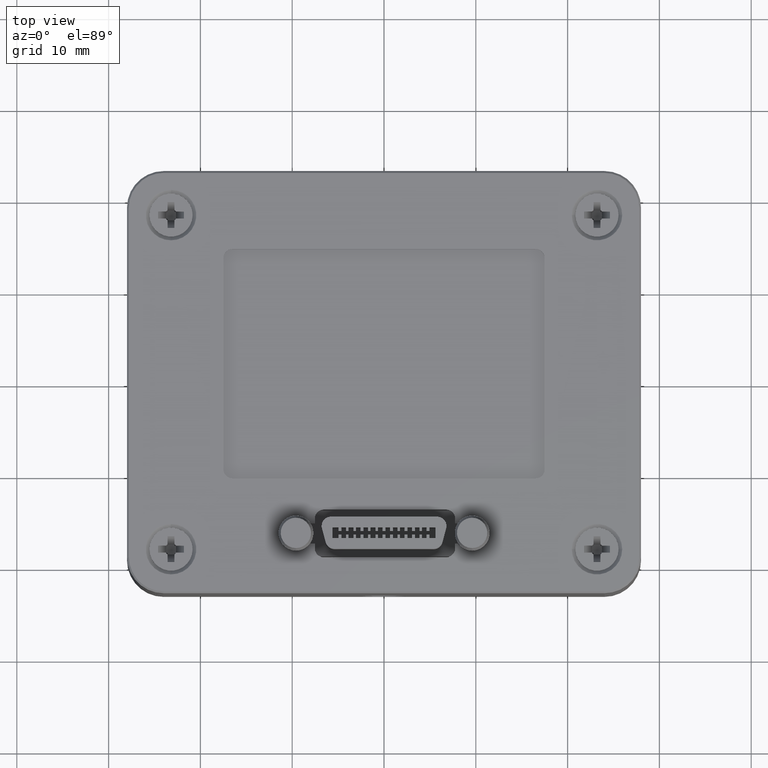
[diagram: clean part render]
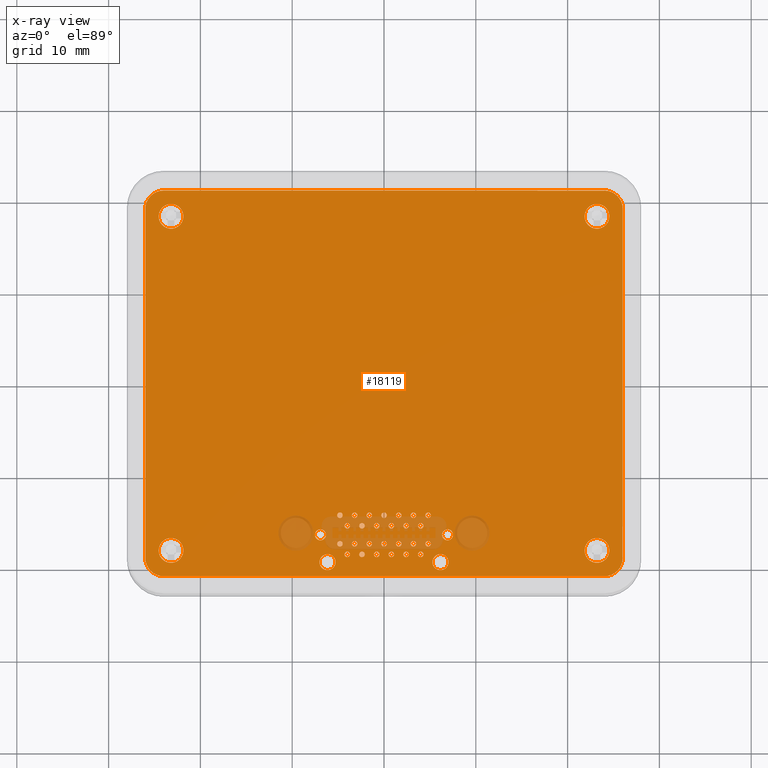
[diagram: x-ray — body ghosted, one internal face saturated and labeled with its STEP entity id]
A machine part, top view, then the same camera in x-ray: the body is ghosted and one INTERNAL B-rep face — a face not visible from any outside direction — is saturated and labeled: STEP entity #18119.
In plain terms, the highlighted planar face has unit normal (0, 0, -1).
Its self-contained STEP definition (entity closure, byte-faithful):
#28 = VERTEX_POINT ( 'NONE', #11020 ) ;
#115 = CARTESIAN_POINT ( 'NONE',  ( -23.99999840000000600, -21.00967774000002600, 19.98000000000000800 ) ) ;
#287 = CIRCLE ( 'NONE', #34578, 0.2999994000000005800 ) ;
#355 = CARTESIAN_POINT ( 'NONE',  ( 3.999998939999992200, -15.52000114000001200, 19.98000000000000800 ) ) ;
#406 = VERTEX_POINT ( 'NONE', #15620 ) ;
#450 = ORIENTED_EDGE ( 'NONE', *, *, #102797, .T. ) ;
#473 = ORIENTED_EDGE ( 'NONE', *, *, #3146, .T. ) ;
#479 = DIRECTION ( 'NONE',  ( -1.000000000000000000, 0.0000000000000000000, 0.0000000000000000000 ) ) ;
#610 = AXIS2_PLACEMENT_3D ( 'NONE', #82373, #33229, #90702 ) ;
#706 = VERTEX_POINT ( 'NONE', #85170 ) ;
#870 = AXIS2_PLACEMENT_3D ( 'NONE', #68925, #19727, #77203 ) ;
#1112 = VECTOR ( 'NONE', #3639, 1000.000000000000000 ) ;
#1152 = FACE_BOUND ( 'NONE', #28667, .T. ) ;
#1222 = CARTESIAN_POINT ( 'NONE',  ( -4.800001240000007400, -14.36999836000001100, 19.98000000000000800 ) ) ;
#1248 = DIRECTION ( 'NONE',  ( -1.000000000000000000, 0.0000000000000000000, 0.0000000000000000000 ) ) ;
#1350 = VERTEX_POINT ( 'NONE', #29875 ) ;
#1376 = EDGE_CURVE ( 'NONE', #105071, #77324, #57894, .T. ) ;
#1395 = ORIENTED_EDGE ( 'NONE', *, *, #3830, .T. ) ;
#1468 = ORIENTED_EDGE ( 'NONE', *, *, #86508, .T. ) ;
#1502 = VERTEX_POINT ( 'NONE', #44539 ) ;
#1516 = EDGE_LOOP ( 'NONE', ( #44901, #18331 ) ) ;
#1718 = CARTESIAN_POINT ( 'NONE',  ( 3.499999939999994600, -17.47999722000001200, 19.98000000000000800 ) ) ;
#1740 = VERTEX_POINT ( 'NONE', #88664 ) ;
#1797 = CIRCLE ( 'NONE', #104531, 0.2999994000000005800 ) ;
#1872 = CARTESIAN_POINT ( 'NONE',  ( 4.500000479999991800, -17.47999722000001200, 19.98000000000000800 ) ) ;
#1894 = AXIS2_PLACEMENT_3D ( 'NONE', #15273, #72739, #23514 ) ;
#2083 = DIRECTION ( 'NONE',  ( -1.000000000000000000, 0.0000000000000000000, 0.0000000000000000000 ) ) ;
#2177 = EDGE_CURVE ( 'NONE', #92376, #69365, #39417, .T. ) ;
#2188 = DIRECTION ( 'NONE',  ( -1.000000000000000000, 0.0000000000000000000, 0.0000000000000000000 ) ) ;
#2376 = CARTESIAN_POINT ( 'NONE',  ( 4.299998339999993000, -15.52000114000001200, 19.98000000000000800 ) ) ;
#2440 = VECTOR ( 'NONE', #79684, 1000.000000000000200 ) ;
#2461 = ORIENTED_EDGE ( 'NONE', *, *, #71109, .T. ) ;
#2490 = PLANE ( 'NONE',  #62296 ) ;
#2520 = CARTESIAN_POINT ( 'NONE',  ( -1.899999420000003000, -17.47999722000001200, 19.98000000000000800 ) ) ;
#2820 = VERTEX_POINT ( 'NONE', #18554 ) ;
#2881 = DIRECTION ( 'NONE',  ( -1.000000000000000000, 0.0000000000000000000, -0.0000000000000000000 ) ) ;
#3048 = EDGE_LOOP ( 'NONE', ( #50128, #71892 ) ) ;
#3116 = CARTESIAN_POINT ( 'NONE',  ( 25.11651754000002200, 20.67098566000001700, 19.98000000000000800 ) ) ;
#3146 = EDGE_CURVE ( 'NONE', #93477, #42542, #64791, .T. ) ;
#3186 = VERTEX_POINT ( 'NONE', #40715 ) ;
#3532 = DIRECTION ( 'NONE',  ( -0.0000000000000000000, -0.0000000000000000000, 1.000000000000000000 ) ) ;
#3572 = VERTEX_POINT ( 'NONE', #50623 ) ;
#3639 = DIRECTION ( 'NONE',  ( -0.8819206700784409900, -0.4713978486251221800, 0.0000000000000000000 ) ) ;
#3707 = EDGE_CURVE ( 'NONE', #55213, #70942, #47787, .T. ) ;
#3744 = FACE_BOUND ( 'NONE', #17500, .T. ) ;
#3830 = EDGE_CURVE ( 'NONE', #1350, #53229, #87510, .T. ) ;
#3850 = DIRECTION ( 'NONE',  ( -0.0000000000000000000, -0.0000000000000000000, 1.000000000000000000 ) ) ;
#3878 = CARTESIAN_POINT ( 'NONE',  ( -23.99999840000000300, 21.00967687999998600, 19.98000000000000800 ) ) ;
#3946 = LINE ( 'NONE', #77206, #88757 ) ;
#3966 = CARTESIAN_POINT ( 'NONE',  ( 2.699998999999994700, -18.63000000000001000, 19.98000000000000800 ) ) ;
#4085 = ORIENTED_EDGE ( 'NONE', *, *, #25369, .T. ) ;
#4088 = CARTESIAN_POINT ( 'NONE',  ( -1.600000020000002400, -14.36999836000001100, 19.98000000000000800 ) ) ;
#4344 = AXIS2_PLACEMENT_3D ( 'NONE', #69811, #20597, #78054 ) ;
#4347 = VERTEX_POINT ( 'NONE', #60956 ) ;
#4473 = EDGE_LOOP ( 'NONE', ( #88993, #82968 ) ) ;
#4736 = CARTESIAN_POINT ( 'NONE',  ( 2.100000199999993500, -18.63000000000001000, 19.98000000000000800 ) ) ;
#4768 = EDGE_CURVE ( 'NONE', #86097, #105760, #33131, .T. ) ;
#4934 = DIRECTION ( 'NONE',  ( -1.000000000000000000, 0.0000000000000000000, 0.0000000000000000000 ) ) ;
#4947 = DIRECTION ( 'NONE',  ( 0.8819206700783308600, 0.4713978486253280200, 0.0000000000000000000 ) ) ;
#4984 = CIRCLE ( 'NONE', #26803, 1.349999839999997700 ) ;
#5268 = CARTESIAN_POINT ( 'NONE',  ( 26.00967805999999900, 18.99999839999998800, 19.98000000000000800 ) ) ;
#5300 = AXIS2_PLACEMENT_3D ( 'NONE', #100617, #51424, #2188 ) ;
#5503 = EDGE_LOOP ( 'NONE', ( #99090, #28560 ) ) ;
#5508 = LINE ( 'NONE', #86692, #90300 ) ;
#5547 = CARTESIAN_POINT ( 'NONE',  ( 23.99999957999999400, 21.00967687999999400, 19.98000000000000800 ) ) ;
#5739 = AXIS2_PLACEMENT_3D ( 'NONE', #24428, #81841, #32710 ) ;
#5740 = VERTEX_POINT ( 'NONE', #78143 ) ;
#5754 = DIRECTION ( 'NONE',  ( -1.000000000000000000, 0.0000000000000000000, 0.0000000000000000000 ) ) ;
#5903 = CARTESIAN_POINT ( 'NONE',  ( 26.00000065999998700, -18.99999926000001000, 19.98000000000000800 ) ) ;
#5929 = CIRCLE ( 'NONE', #89865, 0.2999994000000005800 ) ;
#5975 = EDGE_CURVE ( 'NONE', #36511, #84243, #50821, .T. ) ;
#6147 = EDGE_CURVE ( 'NONE', #77324, #92630, #82772, .T. ) ;
#6295 = AXIS2_PLACEMENT_3D ( 'NONE', #62783, #13584, #71030 ) ;
#6338 = FACE_BOUND ( 'NONE', #34615, .T. ) ;
#6435 = DIRECTION ( 'NONE',  ( -0.09801754873775267400, 0.9951846864474163100, 0.0000000000000000000 ) ) ;
#6463 = EDGE_LOOP ( 'NONE', ( #74937, #88535 ) ) ;
#6471 = DIRECTION ( 'NONE',  ( -1.000000000000000000, 0.0000000000000000000, 0.0000000000000000000 ) ) ;
#6486 = EDGE_CURVE ( 'NONE', #25429, #74403, #14399, .T. ) ;
#6529 = CARTESIAN_POINT ( 'NONE',  ( 2.399999599999993900, -18.63000000000001000, 19.98000000000000800 ) ) ;
#6650 = LINE ( 'NONE', #37326, #72162 ) ;
#6678 = VERTEX_POINT ( 'NONE', #35029 ) ;
#6963 = CARTESIAN_POINT ( 'NONE',  ( 24.39206890000003000, 20.97106126000010600, 19.98000000000000800 ) ) ;
#7020 = DIRECTION ( 'NONE',  ( 0.4713978486251180800, 0.8819206700784433300, 0.0000000000000000000 ) ) ;
#7177 = EDGE_CURVE ( 'NONE', #62270, #66074, #87290, .T. ) ;
#7262 = VECTOR ( 'NONE', #13795, 1000.000000000000000 ) ;
#7273 = CARTESIAN_POINT ( 'NONE',  ( -23.20000000000001000, -18.20000086000001400, 19.98000000000000800 ) ) ;
#7297 = CARTESIAN_POINT ( 'NONE',  ( 5.099999279999992500, -17.47999722000001200, 19.98000000000000800 ) ) ;
#7323 = CARTESIAN_POINT ( 'NONE',  ( -4.299999700000007900, -18.63000000000001000, 19.98000000000000800 ) ) ;
#7627 = VERTEX_POINT ( 'NONE', #3966 ) ;
#7668 = CARTESIAN_POINT ( 'NONE',  ( 4.799999879999992600, -17.47999722000001200, 19.98000000000000800 ) ) ;
#7745 = DIRECTION ( 'NONE',  ( -1.000000000000000000, 0.0000000000000000000, 0.0000000000000000000 ) ) ;
#7879 = EDGE_CURVE ( 'NONE', #1502, #2820, #70314, .T. ) ;
#8043 = EDGE_LOOP ( 'NONE', ( #50307, #84025 ) ) ;
#8094 = VERTEX_POINT ( 'NONE', #101192 ) ;
#8105 = CIRCLE ( 'NONE', #6295, 0.5999988000000011600 ) ;
#8124 = CARTESIAN_POINT ( 'NONE',  ( -2.400000960000002500, -15.52000114000001200, 19.98000000000000800 ) ) ;
#8184 = EDGE_CURVE ( 'NONE', #42542, #1740, #87009, .T. ) ;
#8200 = VERTEX_POINT ( 'NONE', #21388 ) ;
#8213 = AXIS2_PLACEMENT_3D ( 'NONE', #39716, #97207, #48036 ) ;
#8343 = EDGE_CURVE ( 'NONE', #103382, #80934, #83070, .T. ) ;
#8422 = CARTESIAN_POINT ( 'NONE',  ( 3.999998939999992200, -18.63000000000001000, 19.98000000000000800 ) ) ;
#8669 = CARTESIAN_POINT ( 'NONE',  ( -7.025000600000001100, -19.47499958000001300, 19.98000000000000800 ) ) ;
#8670 = DIRECTION ( 'NONE',  ( -1.000000000000000000, 0.0000000000000000000, 0.0000000000000000000 ) ) ;
#8923 = FACE_BOUND ( 'NONE', #78958, .T. ) ;
#8976 = ORIENTED_EDGE ( 'NONE', *, *, #31561, .T. ) ;
#9080 = ORIENTED_EDGE ( 'NONE', *, *, #75658, .T. ) ;
#9101 = CARTESIAN_POINT ( 'NONE',  ( 6.149999719999993200, -19.47499958000001300, 19.98000000000000800 ) ) ;
#9109 = DIRECTION ( 'NONE',  ( -0.0000000000000000000, -0.0000000000000000000, 1.000000000000000000 ) ) ;
#9160 = DIRECTION ( 'NONE',  ( -0.0000000000000000000, -0.0000000000000000000, 1.000000000000000000 ) ) ;
#9217 = EDGE_CURVE ( 'NONE', #82378, #84679, #26176, .T. ) ;
#9224 = CIRCLE ( 'NONE', #9564, 0.2999994000000005800 ) ;
#9257 = CARTESIAN_POINT ( 'NONE',  ( 25.97106243999998300, 19.39206771999998900, 19.98000000000000800 ) ) ;
#9304 = LINE ( 'NONE', #31072, #94112 ) ;
#9533 = DIRECTION ( 'NONE',  ( -1.000000000000000000, 0.0000000000000000000, 0.0000000000000000000 ) ) ;
#9535 = EDGE_CURVE ( 'NONE', #53229, #91298, #17114, .T. ) ;
#9564 = AXIS2_PLACEMENT_3D ( 'NONE', #74533, #25348, #82732 ) ;
#9834 = EDGE_CURVE ( 'NONE', #79511, #88601, #19835, .T. ) ;
#10049 = CARTESIAN_POINT ( 'NONE',  ( -2.700000360000002900, -15.52000114000001200, 19.98000000000000800 ) ) ;
#10180 = EDGE_LOOP ( 'NONE', ( #10872, #80701 ) ) ;
#10321 = DIRECTION ( 'NONE',  ( -0.0000000000000000000, -0.0000000000000000000, 1.000000000000000000 ) ) ;
#10537 = VERTEX_POINT ( 'NONE', #36761 ) ;
#10586 = CARTESIAN_POINT ( 'NONE',  ( -6.925000800000007400, -16.49999918000001400, 19.98000000000000800 ) ) ;
#10782 = DIRECTION ( 'NONE',  ( -0.0000000000000000000, -0.0000000000000000000, 1.000000000000000000 ) ) ;
#10872 = ORIENTED_EDGE ( 'NONE', *, *, #92033, .T. ) ;
#10983 = CIRCLE ( 'NONE', #47097, 0.2999994000000005800 ) ;
#11020 = CARTESIAN_POINT ( 'NONE',  ( 26.00967805999999900, -18.99999926000001000, 19.98000000000000800 ) ) ;
#11176 = VERTEX_POINT ( 'NONE', #104627 ) ;
#11231 = CARTESIAN_POINT ( 'NONE',  ( -3.199999360000007600, -14.36999836000001100, 19.98000000000000800 ) ) ;
#11401 = EDGE_CURVE ( 'NONE', #18521, #85608, #93892, .T. ) ;
#11475 = FACE_BOUND ( 'NONE', #50086, .T. ) ;
#11618 = VERTEX_POINT ( 'NONE', #103249 ) ;
#11621 = ORIENTED_EDGE ( 'NONE', *, *, #86494, .T. ) ;
#11629 = VECTOR ( 'NONE', #63360, 1000.000000000000100 ) ;
#11635 = VERTEX_POINT ( 'NONE', #21321 ) ;
#11769 = VERTEX_POINT ( 'NONE', #7323 ) ;
#11805 = VECTOR ( 'NONE', #82223, 1000.000000000000000 ) ;
#12083 = CIRCLE ( 'NONE', #88570, 1.349999839999997700 ) ;
#12330 = DIRECTION ( 'NONE',  ( -1.000000000000000000, 0.0000000000000000000, 0.0000000000000000000 ) ) ;
#12379 = LINE ( 'NONE', #9257, #53527 ) ;
#12905 = VECTOR ( 'NONE', #38892, 1000.000000000000000 ) ;
#13111 = CARTESIAN_POINT ( 'NONE',  ( -6.800000076911949500E-007, -17.47999722000001200, 19.98000000000000800 ) ) ;
#13173 = CARTESIAN_POINT ( 'NONE',  ( 25.97106243999993000, -19.39206857999998900, 19.98000000000000800 ) ) ;
#13373 = AXIS2_PLACEMENT_3D ( 'NONE', #93151, #43922, #101397 ) ;
#13418 = CARTESIAN_POINT ( 'NONE',  ( 24.76907093999998500, 20.85670029999998200, 19.98000000000000800 ) ) ;
#13442 = DIRECTION ( 'NONE',  ( -0.0000000000000000000, -0.0000000000000000000, 1.000000000000000000 ) ) ;
#13499 = CARTESIAN_POINT ( 'NONE',  ( -3.499998760000008000, -17.47999722000001200, 19.98000000000000800 ) ) ;
#13584 = DIRECTION ( 'NONE',  ( -0.0000000000000000000, -0.0000000000000000000, 1.000000000000000000 ) ) ;
#13780 = EDGE_LOOP ( 'NONE', ( #58355, #76494 ) ) ;
#13795 = DIRECTION ( 'NONE',  ( 0.9951846864474455100, -0.09801754873745609200, 0.0000000000000000000 ) ) ;
#13812 = DIRECTION ( 'NONE',  ( -0.8819206700782624700, 0.4713978486254563600, 0.0000000000000000000 ) ) ;
#13992 = EDGE_CURVE ( 'NONE', #23168, #84642, #24847, .T. ) ;
#14058 = FACE_BOUND ( 'NONE', #58245, .T. ) ;
#14126 = VERTEX_POINT ( 'NONE', #75965 ) ;
#14144 = CARTESIAN_POINT ( 'NONE',  ( 25.67098683999990900, -20.11651721999994900, 19.98000000000000800 ) ) ;
#14245 = AXIS2_PLACEMENT_3D ( 'NONE', #42782, #100247, #51090 ) ;
#14399 = LINE ( 'NONE', #33092, #11805 ) ;
#14407 = EDGE_CURVE ( 'NONE', #68388, #95670, #9304, .T. ) ;
#14556 = AXIS2_PLACEMENT_3D ( 'NONE', #99683, #50525, #1248 ) ;
#14721 = ORIENTED_EDGE ( 'NONE', *, *, #19621, .T. ) ;
#14754 = ORIENTED_EDGE ( 'NONE', *, *, #67758, .T. ) ;
#14781 = CARTESIAN_POINT ( 'NONE',  ( -1.600000020000002400, -17.47999722000001200, 19.98000000000000800 ) ) ;
#14803 = DIRECTION ( 'NONE',  ( -1.000000000000000000, 0.0000000000000000000, 0.0000000000000000000 ) ) ;
#14867 = AXIS2_PLACEMENT_3D ( 'NONE', #86281, #37072, #94576 ) ;
#14878 = EDGE_CURVE ( 'NONE', #73488, #78457, #87456, .T. ) ;
#14966 = EDGE_CURVE ( 'NONE', #3186, #26697, #66857, .T. ) ;
#15205 = DIRECTION ( 'NONE',  ( 0.9569412936382127900, -0.2902815194428055600, 0.0000000000000000000 ) ) ;
#15273 = CARTESIAN_POINT ( 'NONE',  ( -6.925000800000007400, -16.49999918000001400, 19.98000000000000800 ) ) ;
#15402 = ORIENTED_EDGE ( 'NONE', *, *, #7177, .T. ) ;
#15412 = EDGE_CURVE ( 'NONE', #87747, #85692, #25561, .T. ) ;
#15417 = CARTESIAN_POINT ( 'NONE',  ( -1.300000620000001800, -14.36999836000001100, 19.98000000000000800 ) ) ;
#15535 = DIRECTION ( 'NONE',  ( -1.000000000000000000, 0.0000000000000000000, 0.0000000000000000000 ) ) ;
#15620 = CARTESIAN_POINT ( 'NONE',  ( 6.325000640000001600, -16.49999918000001400, 19.98000000000000800 ) ) ;
#15624 = VERTEX_POINT ( 'NONE', #35225 ) ;
#15667 = VERTEX_POINT ( 'NONE', #101325 ) ;
#15932 = DIRECTION ( 'NONE',  ( -1.000000000000000000, 0.0000000000000000000, 0.0000000000000000000 ) ) ;
#15958 = CARTESIAN_POINT ( 'NONE',  ( 3.200000539999994200, -14.36999836000001100, 19.98000000000000800 ) ) ;
#16075 = VERTEX_POINT ( 'NONE', #91888 ) ;
#16308 = ORIENTED_EDGE ( 'NONE', *, *, #14878, .T. ) ;
#16370 = DIRECTION ( 'NONE',  ( -1.000000000000000000, 0.0000000000000000000, 0.0000000000000000000 ) ) ;
#16410 = EDGE_LOOP ( 'NONE', ( #88484, #77710 ) ) ;
#16430 = EDGE_CURVE ( 'NONE', #95063, #103210, #63515, .T. ) ;
#16528 = ORIENTED_EDGE ( 'NONE', *, *, #96616, .T. ) ;
#16613 = DIRECTION ( 'NONE',  ( -0.0000000000000000000, -0.0000000000000000000, 1.000000000000000000 ) ) ;
#16631 = FACE_BOUND ( 'NONE', #95626, .T. ) ;
#16646 = DIRECTION ( 'NONE',  ( -1.000000000000000000, 0.0000000000000000000, 0.0000000000000000000 ) ) ;
#16734 = VERTEX_POINT ( 'NONE', #5903 ) ;
#16821 = EDGE_CURVE ( 'NONE', #70942, #55213, #287, .T. ) ;
#17097 = ORIENTED_EDGE ( 'NONE', *, *, #13992, .T. ) ;
#17114 = LINE ( 'NONE', #88280, #55675 ) ;
#17361 = DIRECTION ( 'NONE',  ( -1.000000000000000000, 0.0000000000000000000, 0.0000000000000000000 ) ) ;
#17449 = AXIS2_PLACEMENT_3D ( 'NONE', #95829, #46616, #104060 ) ;
#17500 = EDGE_LOOP ( 'NONE', ( #18430, #52760 ) ) ;
#17565 = DIRECTION ( 'NONE',  ( -0.4713978486254763500, -0.8819206700782517000, 0.0000000000000000000 ) ) ;
#17641 = EDGE_CURVE ( 'NONE', #66074, #62270, #46395, .T. ) ;
#17666 = AXIS2_PLACEMENT_3D ( 'NONE', #39118, #96609, #47381 ) ;
#17880 = ORIENTED_EDGE ( 'NONE', *, *, #77315, .T. ) ;
#18077 = ORIENTED_EDGE ( 'NONE', *, *, #51390, .T. ) ;
#18096 = EDGE_CURVE ( 'NONE', #78457, #73488, #104001, .T. ) ;
#18119 = ADVANCED_FACE ( 'NONE', ( #38450, #19163, #60318, #16631, #101451, #79535, #57758, #35879, #14058, #98859, #77006, #55179, #33315, #11475, #96303, #74435, #52607, #30769, #8923, #93730, #71846, #50030, #28188, #6338, #91132, #69258, #47455, #25598, #3744, #88544, #66682, #44848, #22999, #1152, #85947 ), #2490, .T. ) ;
#18232 = AXIS2_PLACEMENT_3D ( 'NONE', #59952, #10782, #68199 ) ;
#18292 = ORIENTED_EDGE ( 'NONE', *, *, #33829, .T. ) ;
#18331 = ORIENTED_EDGE ( 'NONE', *, *, #94394, .T. ) ;
#18430 = ORIENTED_EDGE ( 'NONE', *, *, #11401, .T. ) ;
#18465 = VECTOR ( 'NONE', #82326, 1000.000000000000100 ) ;
#18521 = VERTEX_POINT ( 'NONE', #72833 ) ;
#18554 = CARTESIAN_POINT ( 'NONE',  ( 24.55000101999998900, -18.20000086000001400, 19.98000000000000800 ) ) ;
#18667 = CARTESIAN_POINT ( 'NONE',  ( -24.76906976000000100, -20.85670116000000400, 19.98000000000000800 ) ) ;
#18818 = DIRECTION ( 'NONE',  ( -1.000000000000000000, 0.0000000000000000000, 0.0000000000000000000 ) ) ;
#18832 = CARTESIAN_POINT ( 'NONE',  ( 6.924999440000003200, -16.49999918000001400, 19.98000000000000800 ) ) ;
#19163 = FACE_BOUND ( 'NONE', #98954, .T. ) ;
#19242 = CIRCLE ( 'NONE', #75195, 0.2999994000000005800 ) ;
#19456 = DIRECTION ( 'NONE',  ( -1.000000000000000000, 0.0000000000000000000, 0.0000000000000000000 ) ) ;
#19472 = CIRCLE ( 'NONE', #83093, 0.2999994000000005800 ) ;
#19517 = CIRCLE ( 'NONE', #14245, 0.8749995200000027000 ) ;
#19553 = ORIENTED_EDGE ( 'NONE', *, *, #39016, .T. ) ;
#19621 = EDGE_CURVE ( 'NONE', #21370, #6678, #81356, .T. ) ;
#19727 = DIRECTION ( 'NONE',  ( -0.0000000000000000000, -0.0000000000000000000, 1.000000000000000000 ) ) ;
#19835 = LINE ( 'NONE', #51695, #41710 ) ;
#19894 = ORIENTED_EDGE ( 'NONE', *, *, #59552, .T. ) ;
#20130 = CARTESIAN_POINT ( 'NONE',  ( 25.11651753999999300, -20.67098652000001700, 19.98000000000000800 ) ) ;
#20274 = EDGE_CURVE ( 'NONE', #16075, #103252, #75912, .T. ) ;
#20281 = VECTOR ( 'NONE', #46702, 1000.000000000000100 ) ;
#20505 = CIRCLE ( 'NONE', #100056, 0.2999994000000005800 ) ;
#20597 = DIRECTION ( 'NONE',  ( -0.0000000000000000000, -0.0000000000000000000, 1.000000000000000000 ) ) ;
#20598 = LINE ( 'NONE', #52656, #39888 ) ;
#20644 = ORIENTED_EDGE ( 'NONE', *, *, #9217, .T. ) ;
#20745 = CARTESIAN_POINT ( 'NONE',  ( -1.600000020000002400, -17.47999722000001200, 19.98000000000000800 ) ) ;
#21039 = CARTESIAN_POINT ( 'NONE',  ( -25.67098566000004900, 20.11651636000002300, 19.98000000000000800 ) ) ;
#21180 = VERTEX_POINT ( 'NONE', #90053 ) ;
#21219 = CIRCLE ( 'NONE', #80076, 0.8749995199999992500 ) ;
#21321 = CARTESIAN_POINT ( 'NONE',  ( -2.899999960000006800, -14.36999836000001100, 19.98000000000000800 ) ) ;
#21339 = DIRECTION ( 'NONE',  ( -1.000000000000000000, 0.0000000000000000000, 0.0000000000000000000 ) ) ;
#21370 = VERTEX_POINT ( 'NONE', #85294 ) ;
#21388 = CARTESIAN_POINT ( 'NONE',  ( -1.100001020000008300, -18.63000000000001000, 19.98000000000000800 ) ) ;
#21750 = AXIS2_PLACEMENT_3D ( 'NONE', #104117, #54930, #5754 ) ;
#21813 = CIRCLE ( 'NONE', #17666, 0.2999994000000005800 ) ;
#21828 = EDGE_LOOP ( 'NONE', ( #20644, #79814 ) ) ;
#21912 = CIRCLE ( 'NONE', #75857, 1.349999840000001100 ) ;
#21978 = AXIS2_PLACEMENT_3D ( 'NONE', #59512, #10321, #67752 ) ;
#22171 = AXIS2_PLACEMENT_3D ( 'NONE', #10586, #68002, #18818 ) ;
#22249 = ORIENTED_EDGE ( 'NONE', *, *, #55419, .T. ) ;
#22365 = EDGE_LOOP ( 'NONE', ( #82910, #14754 ) ) ;
#22389 = CIRCLE ( 'NONE', #81972, 0.2999994000000005800 ) ;
#22475 = DIRECTION ( 'NONE',  ( -1.000000000000000000, 0.0000000000000000000, 0.0000000000000000000 ) ) ;
#22498 = CARTESIAN_POINT ( 'NONE',  ( -24.54999984000000900, 18.19999999999999600, 19.98000000000000800 ) ) ;
#22676 = DIRECTION ( 'NONE',  ( -0.9569412936382659700, -0.2902815194426299200, 0.0000000000000000000 ) ) ;
#22720 = ORIENTED_EDGE ( 'NONE', *, *, #99202, .T. ) ;
#22979 = DIRECTION ( 'NONE',  ( -1.000000000000000000, 0.0000000000000000000, 0.0000000000000000000 ) ) ;
#22995 = AXIS2_PLACEMENT_3D ( 'NONE', #76086, #71679, #22475 ) ;
#22999 = FACE_BOUND ( 'NONE', #13780, .T. ) ;
#23045 = LINE ( 'NONE', #59527, #64178 ) ;
#23168 = VERTEX_POINT ( 'NONE', #90269 ) ;
#23511 = VERTEX_POINT ( 'NONE', #4736 ) ;
#23514 = DIRECTION ( 'NONE',  ( -1.000000000000000000, 0.0000000000000000000, 0.0000000000000000000 ) ) ;
#23686 = EDGE_CURVE ( 'NONE', #6678, #93477, #89315, .T. ) ;
#23924 = VERTEX_POINT ( 'NONE', #93349 ) ;
#24189 = DIRECTION ( 'NONE',  ( -1.000000000000000000, 0.0000000000000000000, 0.0000000000000000000 ) ) ;
#24281 = ORIENTED_EDGE ( 'NONE', *, *, #8184, .T. ) ;
#24373 = CARTESIAN_POINT ( 'NONE',  ( 23.20000117999999000, 18.19999999999999600, 19.98000000000000800 ) ) ;
#24428 = CARTESIAN_POINT ( 'NONE',  ( 3.200000539999994200, -17.47999722000001200, 19.98000000000000800 ) ) ;
#24802 = EDGE_CURVE ( 'NONE', #92630, #25429, #59436, .T. ) ;
#24847 = CIRCLE ( 'NONE', #1894, 0.5999988000000011600 ) ;
#25304 = CARTESIAN_POINT ( 'NONE',  ( -25.42105474000004500, -20.42105560000004200, 19.98000000000000800 ) ) ;
#25322 = EDGE_CURVE ( 'NONE', #85608, #18521, #32258, .T. ) ;
#25348 = DIRECTION ( 'NONE',  ( -0.0000000000000000000, -0.0000000000000000000, 1.000000000000000000 ) ) ;
#25369 = EDGE_CURVE ( 'NONE', #47825, #77468, #21912, .T. ) ;
#25429 = VERTEX_POINT ( 'NONE', #54730 ) ;
#25464 = EDGE_CURVE ( 'NONE', #65289, #72569, #96469, .T. ) ;
#25550 = ORIENTED_EDGE ( 'NONE', *, *, #2177, .T. ) ;
#25561 = LINE ( 'NONE', #72665, #69218 ) ;
#25598 = FACE_BOUND ( 'NONE', #61965, .T. ) ;
#25629 = DIRECTION ( 'NONE',  ( -0.09801754873792392600, -0.9951846864473993200, 0.0000000000000000000 ) ) ;
#25728 = CARTESIAN_POINT ( 'NONE',  ( -3.700000900000007100, -15.52000114000001200, 19.98000000000000800 ) ) ;
#26050 = EDGE_CURVE ( 'NONE', #15667, #11618, #64498, .T. ) ;
#26139 = ORIENTED_EDGE ( 'NONE', *, *, #96923, .T. ) ;
#26176 = CIRCLE ( 'NONE', #870, 0.2999994000000005800 ) ;
#26246 = VECTOR ( 'NONE', #42854, 999.9999999999998900 ) ;
#26361 = VECTOR ( 'NONE', #40234, 1000.000000000000000 ) ;
#26485 = CARTESIAN_POINT ( 'NONE',  ( 23.99999957999998700, -21.00967774000001500, 19.98000000000000800 ) ) ;
#26601 = AXIS2_PLACEMENT_3D ( 'NONE', #13111, #70534, #21339 ) ;
#26697 = VERTEX_POINT ( 'NONE', #79998 ) ;
#26803 = AXIS2_PLACEMENT_3D ( 'NONE', #52747, #3532, #60990 ) ;
#26888 = VERTEX_POINT ( 'NONE', #26485 ) ;
#27119 = AXIS2_PLACEMENT_3D ( 'NONE', #104856, #55702, #6471 ) ;
#27128 = DIRECTION ( 'NONE',  ( -1.000000000000000000, 0.0000000000000000000, 0.0000000000000000000 ) ) ;
#27397 = EDGE_CURVE ( 'NONE', #68173, #83510, #70245, .T. ) ;
#27541 = DIRECTION ( 'NONE',  ( -0.0000000000000000000, -0.0000000000000000000, 1.000000000000000000 ) ) ;
#27690 = DIRECTION ( 'NONE',  ( 0.8819206700784406600, -0.4713978486251228500, 0.0000000000000000000 ) ) ;
#27695 = VERTEX_POINT ( 'NONE', #56475 ) ;
#27887 = CIRCLE ( 'NONE', #14867, 0.2999994000000005800 ) ;
#27896 = DIRECTION ( 'NONE',  ( -0.0000000000000000000, -0.0000000000000000000, 1.000000000000000000 ) ) ;
#28030 = ORIENTED_EDGE ( 'NONE', *, *, #15412, .T. ) ;
#28188 = FACE_BOUND ( 'NONE', #53953, .T. ) ;
#28507 = CARTESIAN_POINT ( 'NONE',  ( -2.400000960000002500, -18.63000000000001000, 19.98000000000000800 ) ) ;
#28560 = ORIENTED_EDGE ( 'NONE', *, *, #20274, .T. ) ;
#28667 = EDGE_LOOP ( 'NONE', ( #38523, #68943 ) ) ;
#28668 = EDGE_CURVE ( 'NONE', #88601, #87747, #40312, .T. ) ;
#28714 = ORIENTED_EDGE ( 'NONE', *, *, #98921, .T. ) ;
#28897 = CARTESIAN_POINT ( 'NONE',  ( -2.100001560000001700, -15.52000114000001200, 19.98000000000000800 ) ) ;
#29064 = DIRECTION ( 'NONE',  ( -1.000000000000000000, 0.0000000000000000000, 0.0000000000000000000 ) ) ;
#29665 = ORIENTED_EDGE ( 'NONE', *, *, #24802, .T. ) ;
#29826 = CARTESIAN_POINT ( 'NONE',  ( 25.67098684000000100, 20.11651635999999500, 19.98000000000000800 ) ) ;
#29875 = CARTESIAN_POINT ( 'NONE',  ( -25.85670030000007500, -19.76907062000002600, 19.98000000000000800 ) ) ;
#30455 = CARTESIAN_POINT ( 'NONE',  ( -1.899999420000003000, -14.36999836000001100, 19.98000000000000800 ) ) ;
#30509 = VERTEX_POINT ( 'NONE', #60795 ) ;
#30537 = CARTESIAN_POINT ( 'NONE',  ( -25.11651635999994500, -20.67098651999993600, 19.98000000000000800 ) ) ;
#30622 = EDGE_CURVE ( 'NONE', #7627, #23511, #65183, .T. ) ;
#30769 = FACE_BOUND ( 'NONE', #78442, .T. ) ;
#30872 = VECTOR ( 'NONE', #103447, 1000.000000000000200 ) ;
#30908 = CARTESIAN_POINT ( 'NONE',  ( -4.800001240000007400, -17.47999722000001200, 19.98000000000000800 ) ) ;
#31023 = ORIENTED_EDGE ( 'NONE', *, *, #42395, .T. ) ;
#31072 = CARTESIAN_POINT ( 'NONE',  ( 25.11651754000002900, 20.67098566000002800, 19.98000000000000800 ) ) ;
#31301 = ORIENTED_EDGE ( 'NONE', *, *, #14407, .T. ) ;
#31404 = VERTEX_POINT ( 'NONE', #32123 ) ;
#31423 = CARTESIAN_POINT ( 'NONE',  ( 24.76907093999996300, -20.85670115999991500, 19.98000000000000800 ) ) ;
#31561 = EDGE_CURVE ( 'NONE', #53982, #65970, #91840, .T. ) ;
#31703 = DIRECTION ( 'NONE',  ( -0.0000000000000000000, -0.0000000000000000000, 1.000000000000000000 ) ) ;
#31933 = CARTESIAN_POINT ( 'NONE',  ( 23.20000117999999000, -18.20000086000001400, 19.98000000000000800 ) ) ;
#32123 = CARTESIAN_POINT ( 'NONE',  ( -3.499998760000008000, -14.36999836000001100, 19.98000000000000800 ) ) ;
#32258 = CIRCLE ( 'NONE', #4344, 0.2999994000000005800 ) ;
#32664 = DIRECTION ( 'NONE',  ( -1.000000000000000000, 0.0000000000000000000, 0.0000000000000000000 ) ) ;
#32710 = DIRECTION ( 'NONE',  ( -1.000000000000000000, 0.0000000000000000000, 0.0000000000000000000 ) ) ;
#32886 = CARTESIAN_POINT ( 'NONE',  ( -3.199999360000007600, -14.36999836000001100, 19.98000000000000800 ) ) ;
#33011 = EDGE_CURVE ( 'NONE', #11635, #31404, #1797, .T. ) ;
#33092 = CARTESIAN_POINT ( 'NONE',  ( 23.99999957999999400, -18.99999926000001000, 19.98000000000000800 ) ) ;
#33131 = LINE ( 'NONE', #80132, #54988 ) ;
#33185 = CIRCLE ( 'NONE', #67957, 0.2999994000000005800 ) ;
#33229 = DIRECTION ( 'NONE',  ( -0.0000000000000000000, -0.0000000000000000000, 1.000000000000000000 ) ) ;
#33315 = FACE_BOUND ( 'NONE', #4473, .T. ) ;
#33454 = CARTESIAN_POINT ( 'NONE',  ( -4.000000300000007900, -18.63000000000001000, 19.98000000000000800 ) ) ;
#33693 = CARTESIAN_POINT ( 'NONE',  ( 25.97106243999998300, 19.39206771999998900, 19.98000000000000800 ) ) ;
#33699 = ORIENTED_EDGE ( 'NONE', *, *, #70585, .T. ) ;
#33798 = CARTESIAN_POINT ( 'NONE',  ( 1.300001799999992000, -17.47999722000001200, 19.98000000000000800 ) ) ;
#33829 = EDGE_CURVE ( 'NONE', #56470, #49558, #70835, .T. ) ;
#33836 = CIRCLE ( 'NONE', #76445, 1.349999839999997700 ) ;
#33874 = ORIENTED_EDGE ( 'NONE', *, *, #70825, .T. ) ;
#34002 = DIRECTION ( 'NONE',  ( -1.000000000000000000, 0.0000000000000000000, -0.0000000000000000000 ) ) ;
#34238 = CARTESIAN_POINT ( 'NONE',  ( -6.150001080000001800, -19.47499958000001300, 19.98000000000000800 ) ) ;
#34578 = AXIS2_PLACEMENT_3D ( 'NONE', #7668, #65090, #15932 ) ;
#34615 = EDGE_LOOP ( 'NONE', ( #17880, #55804 ) ) ;
#34644 = AXIS2_PLACEMENT_3D ( 'NONE', #46317, #103776, #54603 ) ;
#34671 = DIRECTION ( 'NONE',  ( -0.0000000000000000000, -0.0000000000000000000, 1.000000000000000000 ) ) ;
#34716 = CARTESIAN_POINT ( 'NONE',  ( -4.500001840000007500, -14.36999836000001100, 19.98000000000000800 ) ) ;
#34820 = CARTESIAN_POINT ( 'NONE',  ( -21.85000016000000800, 18.19999999999999600, 19.98000000000000800 ) ) ;
#34912 = EDGE_CURVE ( 'NONE', #72569, #84357, #73152, .T. ) ;
#34984 = EDGE_CURVE ( 'NONE', #54101, #8094, #89841, .T. ) ;
#34985 = CARTESIAN_POINT ( 'NONE',  ( -24.39206772000000700, 20.97106125999997800, 19.98000000000000800 ) ) ;
#35029 = CARTESIAN_POINT ( 'NONE',  ( -25.97106125999995600, 19.39206771999996800, 19.98000000000000800 ) ) ;
#35225 = CARTESIAN_POINT ( 'NONE',  ( 3.699999539999991400, -15.52000114000001200, 19.98000000000000800 ) ) ;
#35441 = EDGE_CURVE ( 'NONE', #96879, #75484, #54171, .T. ) ;
#35879 = FACE_BOUND ( 'NONE', #41619, .T. ) ;
#36022 = VERTEX_POINT ( 'NONE', #13418 ) ;
#36155 = EDGE_CURVE ( 'NONE', #26697, #3186, #38362, .T. ) ;
#36511 = VERTEX_POINT ( 'NONE', #28897 ) ;
#36593 = ORIENTED_EDGE ( 'NONE', *, *, #27397, .T. ) ;
#36728 = DIRECTION ( 'NONE',  ( -1.000000000000000000, 0.0000000000000000000, 0.0000000000000000000 ) ) ;
#36761 = CARTESIAN_POINT ( 'NONE',  ( 7.524998240000003900, -16.49999918000001400, 19.98000000000000800 ) ) ;
#36812 = CARTESIAN_POINT ( 'NONE',  ( 1.300001799999992000, -14.36999836000001100, 19.98000000000000800 ) ) ;
#37072 = DIRECTION ( 'NONE',  ( -0.0000000000000000000, -0.0000000000000000000, 1.000000000000000000 ) ) ;
#37324 = CIRCLE ( 'NONE', #95210, 0.2999994000000005800 ) ;
#37326 = CARTESIAN_POINT ( 'NONE',  ( -26.00967688000000800, -18.99999926000001000, 19.98000000000000800 ) ) ;
#37392 = EDGE_LOOP ( 'NONE', ( #79900, #28714 ) ) ;
#37450 = CIRCLE ( 'NONE', #95856, 0.2999994000000005800 ) ;
#37505 = EDGE_CURVE ( 'NONE', #83510, #68173, #72531, .T. ) ;
#37663 = VECTOR ( 'NONE', #34002, 1000.000000000000000 ) ;
#37862 = DIRECTION ( 'NONE',  ( 0.7730070544857801100, 0.6343974256845769100, 0.0000000000000000000 ) ) ;
#38067 = CARTESIAN_POINT ( 'NONE',  ( 25.42105591999997600, -20.42105559999999200, 19.98000000000000800 ) ) ;
#38079 = DIRECTION ( 'NONE',  ( -0.0000000000000000000, -0.0000000000000000000, 1.000000000000000000 ) ) ;
#38362 = CIRCLE ( 'NONE', #22995, 0.2999994000000005800 ) ;
#38449 = CIRCLE ( 'NONE', #47529, 0.2999994000000005800 ) ;
#38450 = FACE_OUTER_BOUND ( 'NONE', #93672, .T. ) ;
#38523 = ORIENTED_EDGE ( 'NONE', *, *, #26050, .T. ) ;
#38556 = DIRECTION ( 'NONE',  ( -0.0000000000000000000, -0.0000000000000000000, 1.000000000000000000 ) ) ;
#38892 = DIRECTION ( 'NONE',  ( -0.9951846864474165300, -0.09801754873775016300, 0.0000000000000000000 ) ) ;
#38995 = EDGE_CURVE ( 'NONE', #14126, #92762, #42159, .T. ) ;
#39016 = EDGE_CURVE ( 'NONE', #58722, #72038, #75525, .T. ) ;
#39118 = CARTESIAN_POINT ( 'NONE',  ( 2.399999599999993900, -18.63000000000001000, 19.98000000000000800 ) ) ;
#39139 = VECTOR ( 'NONE', #76627, 1000.000000000000000 ) ;
#39144 = DIRECTION ( 'NONE',  ( -1.000000000000000000, 0.0000000000000000000, 0.0000000000000000000 ) ) ;
#39294 = CARTESIAN_POINT ( 'NONE',  ( -2.400000960000002500, -15.52000114000001200, 19.98000000000000800 ) ) ;
#39417 = CIRCLE ( 'NONE', #69534, 0.2999994000000005800 ) ;
#39469 = EDGE_CURVE ( 'NONE', #48287, #78980, #93418, .T. ) ;
#39716 = CARTESIAN_POINT ( 'NONE',  ( 2.399999599999993900, -15.52000114000001200, 19.98000000000000800 ) ) ;
#39888 = VECTOR ( 'NONE', #84924, 1000.000000000000100 ) ;
#40160 = AXIS2_PLACEMENT_3D ( 'NONE', #8422, #65836, #16646 ) ;
#40185 = DIRECTION ( 'NONE',  ( -1.000000000000000000, 0.0000000000000000000, 0.0000000000000000000 ) ) ;
#40234 = DIRECTION ( 'NONE',  ( 0.2902815194423361600, 0.9569412936383551200, 0.0000000000000000000 ) ) ;
#40309 = AXIS2_PLACEMENT_3D ( 'NONE', #97369, #48208, #105637 ) ;
#40312 = LINE ( 'NONE', #115, #18465 ) ;
#40402 = CARTESIAN_POINT ( 'NONE',  ( 25.67098683999993700, -20.11651721999996000, 19.98000000000000800 ) ) ;
#40601 = ORIENTED_EDGE ( 'NONE', *, *, #90827, .T. ) ;
#40715 = CARTESIAN_POINT ( 'NONE',  ( 1.099999659999993100, -15.52000114000001200, 19.98000000000000800 ) ) ;
#40731 = CARTESIAN_POINT ( 'NONE',  ( -1.100001020000008300, -15.52000114000001200, 19.98000000000000800 ) ) ;
#40841 = ORIENTED_EDGE ( 'NONE', *, *, #9535, .T. ) ;
#41039 = AXIS2_PLACEMENT_3D ( 'NONE', #15958, #73408, #24189 ) ;
#41135 = DIRECTION ( 'NONE',  ( -1.000000000000000000, 0.0000000000000000000, 0.0000000000000000000 ) ) ;
#41327 = ORIENTED_EDGE ( 'NONE', *, *, #97686, .T. ) ;
#41619 = EDGE_LOOP ( 'NONE', ( #22249, #104335 ) ) ;
#41709 = DIRECTION ( 'NONE',  ( -1.000000000000000000, 0.0000000000000000000, 0.0000000000000000000 ) ) ;
#41710 = VECTOR ( 'NONE', #42683, 1000.000000000000000 ) ;
#41800 = CARTESIAN_POINT ( 'NONE',  ( -5.100000640000008200, -14.36999836000001100, 19.98000000000000800 ) ) ;
#42039 = CARTESIAN_POINT ( 'NONE',  ( 0.2999987199999928900, -14.36999836000001100, 19.98000000000000800 ) ) ;
#42108 = EDGE_LOOP ( 'NONE', ( #102248, #76691 ) ) ;
#42126 = CARTESIAN_POINT ( 'NONE',  ( -5.100000640000008200, -17.47999722000001200, 19.98000000000000800 ) ) ;
#42159 = LINE ( 'NONE', #95568, #20281 ) ;
#42355 = CARTESIAN_POINT ( 'NONE',  ( 23.20000117999999000, -18.20000086000001400, 19.98000000000000800 ) ) ;
#42395 = EDGE_CURVE ( 'NONE', #65329, #96891, #44256, .T. ) ;
#42451 = EDGE_CURVE ( 'NONE', #8094, #57126, #91787, .T. ) ;
#42485 = DIRECTION ( 'NONE',  ( -1.000000000000000000, 0.0000000000000000000, 0.0000000000000000000 ) ) ;
#42508 = VECTOR ( 'NONE', #25629, 1000.000000000000100 ) ;
#42542 = VERTEX_POINT ( 'NONE', #43925 ) ;
#42683 = DIRECTION ( 'NONE',  ( -0.0000000000000000000, -1.000000000000000000, -0.0000000000000000000 ) ) ;
#42736 = AXIS2_PLACEMENT_3D ( 'NONE', #96837, #47623, #105052 ) ;
#42782 = CARTESIAN_POINT ( 'NONE',  ( 6.149999719999993200, -19.47499958000001300, 19.98000000000000800 ) ) ;
#42854 = DIRECTION ( 'NONE',  ( -0.6343974256844305800, 0.7730070544859002400, 0.0000000000000000000 ) ) ;
#42948 = VERTEX_POINT ( 'NONE', #91963 ) ;
#42994 = CARTESIAN_POINT ( 'NONE',  ( -26.00967688000000800, -18.99999926000001300, 19.98000000000000800 ) ) ;
#43922 = DIRECTION ( 'NONE',  ( -0.0000000000000000000, -0.0000000000000000000, 1.000000000000000000 ) ) ;
#43925 = CARTESIAN_POINT ( 'NONE',  ( -25.67098566000003500, 20.11651636000001600, 19.98000000000000800 ) ) ;
#44163 = ORIENTED_EDGE ( 'NONE', *, *, #95109, .T. ) ;
#44256 = CIRCLE ( 'NONE', #105176, 0.2999994000000005800 ) ;
#44315 = DIRECTION ( 'NONE',  ( -0.0000000000000000000, -0.0000000000000000000, 1.000000000000000000 ) ) ;
#44340 = EDGE_CURVE ( 'NONE', #84243, #36511, #70536, .T. ) ;
#44433 = ORIENTED_EDGE ( 'NONE', *, *, #63960, .T. ) ;
#44485 = CARTESIAN_POINT ( 'NONE',  ( 25.11651753999999300, -20.67098652000002100, 19.98000000000000800 ) ) ;
#44539 = CARTESIAN_POINT ( 'NONE',  ( 21.85000133999999500, -18.20000086000001400, 19.98000000000000800 ) ) ;
#44587 = VERTEX_POINT ( 'NONE', #51132 ) ;
#44848 = FACE_BOUND ( 'NONE', #16410, .T. ) ;
#44890 = CARTESIAN_POINT ( 'NONE',  ( -25.67098566000001400, -20.11651722000001600, 19.98000000000000800 ) ) ;
#44901 = ORIENTED_EDGE ( 'NONE', *, *, #69978, .T. ) ;
#44925 = ORIENTED_EDGE ( 'NONE', *, *, #92048, .T. ) ;
#44999 = VECTOR ( 'NONE', #15205, 1000.000000000000100 ) ;
#45229 = VECTOR ( 'NONE', #78653, 1000.000000000000100 ) ;
#45598 = DIRECTION ( 'NONE',  ( 0.0002546684284764868200, 0.9999999675719951600, 0.0000000000000000000 ) ) ;
#45643 = CARTESIAN_POINT ( 'NONE',  ( 0.8000002599999923600, -18.63000000000001000, 19.98000000000000800 ) ) ;
#45716 = ORIENTED_EDGE ( 'NONE', *, *, #63438, .T. ) ;
#45783 = EDGE_CURVE ( 'NONE', #42948, #105071, #94249, .T. ) ;
#45801 = EDGE_LOOP ( 'NONE', ( #86723, #79892 ) ) ;
#46317 = CARTESIAN_POINT ( 'NONE',  ( 4.799999879999992600, -14.36999836000001100, 19.98000000000000800 ) ) ;
#46395 = CIRCLE ( 'NONE', #13373, 1.349999840000001100 ) ;
#46424 = VECTOR ( 'NONE', #94703, 1000.000000000000100 ) ;
#46484 = CARTESIAN_POINT ( 'NONE',  ( -25.85670030000000000, 19.76906975999997200, 19.98000000000000800 ) ) ;
#46491 = AXIS2_PLACEMENT_3D ( 'NONE', #93548, #44315, #101812 ) ;
#46616 = DIRECTION ( 'NONE',  ( -0.0000000000000000000, -0.0000000000000000000, 1.000000000000000000 ) ) ;
#46702 = DIRECTION ( 'NONE',  ( 0.2902815194423792900, -0.9569412936383420200, 0.0000000000000000000 ) ) ;
#46760 = DIRECTION ( 'NONE',  ( 1.000000000000000000, -0.0000000000000000000, 0.0000000000000000000 ) ) ;
#47097 = AXIS2_PLACEMENT_3D ( 'NONE', #83845, #34671, #92176 ) ;
#47112 = CIRCLE ( 'NONE', #56395, 1.349999840000001100 ) ;
#47381 = DIRECTION ( 'NONE',  ( -1.000000000000000000, 0.0000000000000000000, 0.0000000000000000000 ) ) ;
#47455 = FACE_BOUND ( 'NONE', #87229, .T. ) ;
#47529 = AXIS2_PLACEMENT_3D ( 'NONE', #65789, #16613, #74069 ) ;
#47573 = DIRECTION ( 'NONE',  ( -1.000000000000000000, 0.0000000000000000000, 0.0000000000000000000 ) ) ;
#47612 = LINE ( 'NONE', #6963, #44999 ) ;
#47623 = DIRECTION ( 'NONE',  ( -0.0000000000000000000, -0.0000000000000000000, 1.000000000000000000 ) ) ;
#47759 = AXIS2_PLACEMENT_3D ( 'NONE', #76673, #27541, #84904 ) ;
#47787 = CIRCLE ( 'NONE', #98652, 0.2999994000000005800 ) ;
#47800 = CARTESIAN_POINT ( 'NONE',  ( -25.97106125999993500, 19.39206771999996800, 19.98000000000000800 ) ) ;
#47825 = VERTEX_POINT ( 'NONE', #95347 ) ;
#48036 = DIRECTION ( 'NONE',  ( -1.000000000000000000, 0.0000000000000000000, 0.0000000000000000000 ) ) ;
#48208 = DIRECTION ( 'NONE',  ( -0.0000000000000000000, -0.0000000000000000000, 1.000000000000000000 ) ) ;
#48287 = VERTEX_POINT ( 'NONE', #70422 ) ;
#48430 = ORIENTED_EDGE ( 'NONE', *, *, #54889, .T. ) ;
#48626 = DIRECTION ( 'NONE',  ( -0.0000000000000000000, -0.0000000000000000000, 1.000000000000000000 ) ) ;
#48700 = CARTESIAN_POINT ( 'NONE',  ( -25.97106126000000300, -19.39206858000001100, 19.98000000000000800 ) ) ;
#48914 = CARTESIAN_POINT ( 'NONE',  ( -0.8000016200000077400, -18.63000000000001000, 19.98000000000000800 ) ) ;
#49281 = EDGE_CURVE ( 'NONE', #59565, #68559, #72635, .T. ) ;
#49391 = ORIENTED_EDGE ( 'NONE', *, *, #87242, .T. ) ;
#49558 = VERTEX_POINT ( 'NONE', #99960 ) ;
#49721 = DIRECTION ( 'NONE',  ( -0.0000000000000000000, -0.0000000000000000000, 1.000000000000000000 ) ) ;
#50016 = EDGE_CURVE ( 'NONE', #15624, #68305, #92839, .T. ) ;
#50030 = FACE_BOUND ( 'NONE', #8043, .T. ) ;
#50059 = CARTESIAN_POINT ( 'NONE',  ( 26.00967805999999900, -18.99999926000001000, 19.98000000000000800 ) ) ;
#50086 = EDGE_LOOP ( 'NONE', ( #76795, #60704 ) ) ;
#50128 = ORIENTED_EDGE ( 'NONE', *, *, #16821, .T. ) ;
#50307 = ORIENTED_EDGE ( 'NONE', *, *, #84112, .T. ) ;
#50430 = CIRCLE ( 'NONE', #94140, 0.2999994000000005800 ) ;
#50525 = DIRECTION ( 'NONE',  ( -0.0000000000000000000, -0.0000000000000000000, 1.000000000000000000 ) ) ;
#50623 = CARTESIAN_POINT ( 'NONE',  ( 25.67098684000000800, 20.11651635999999500, 19.98000000000000800 ) ) ;
#50658 = DIRECTION ( 'NONE',  ( -1.000000000000000000, 0.0000000000000000000, 0.0000000000000000000 ) ) ;
#50821 = CIRCLE ( 'NONE', #96048, 0.2999994000000005800 ) ;
#51090 = DIRECTION ( 'NONE',  ( -1.000000000000000000, 0.0000000000000000000, 0.0000000000000000000 ) ) ;
#51132 = CARTESIAN_POINT ( 'NONE',  ( 4.299998339999993000, -18.63000000000001000, 19.98000000000000800 ) ) ;
#51295 = DIRECTION ( 'NONE',  ( -0.0000000000000000000, -0.0000000000000000000, 1.000000000000000000 ) ) ;
#51363 = EDGE_CURVE ( 'NONE', #31404, #11635, #19472, .T. ) ;
#51390 = EDGE_CURVE ( 'NONE', #72038, #58722, #9224, .T. ) ;
#51424 = DIRECTION ( 'NONE',  ( -0.0000000000000000000, -0.0000000000000000000, 1.000000000000000000 ) ) ;
#51591 = CARTESIAN_POINT ( 'NONE',  ( 2.900001139999993400, -17.47999722000001200, 19.98000000000000800 ) ) ;
#51695 = CARTESIAN_POINT ( 'NONE',  ( -23.99999840000000600, -18.99999926000001000, 19.98000000000000800 ) ) ;
#51699 = EDGE_CURVE ( 'NONE', #105760, #26888, #80972, .T. ) ;
#51856 = CARTESIAN_POINT ( 'NONE',  ( 23.99999957999999400, 21.00967687999999400, 19.98000000000000800 ) ) ;
#52093 = DIRECTION ( 'NONE',  ( 0.0000000000000000000, 0.0000000000000000000, -1.000000000000000000 ) ) ;
#52607 = FACE_BOUND ( 'NONE', #104037, .T. ) ;
#52656 = CARTESIAN_POINT ( 'NONE',  ( 25.42105591999996900, 20.42105473999997800, 19.98000000000000800 ) ) ;
#52747 = CARTESIAN_POINT ( 'NONE',  ( 23.20000117999999000, 18.19999999999999600, 19.98000000000000800 ) ) ;
#52760 = ORIENTED_EDGE ( 'NONE', *, *, #25322, .T. ) ;
#52958 = AXIS2_PLACEMENT_3D ( 'NONE', #31933, #89387, #40185 ) ;
#53092 = CARTESIAN_POINT ( 'NONE',  ( 4.799999879999992600, -17.47999722000001200, 19.98000000000000800 ) ) ;
#53204 = DIRECTION ( 'NONE',  ( -0.2902815194423910600, 0.9569412936383383500, 0.0000000000000000000 ) ) ;
#53229 = VERTEX_POINT ( 'NONE', #48700 ) ;
#53346 = EDGE_CURVE ( 'NONE', #80934, #103382, #22389, .T. ) ;
#53527 = VECTOR ( 'NONE', #58467, 1000.000000000000100 ) ;
#53592 = CARTESIAN_POINT ( 'NONE',  ( -23.99999840000001000, -21.00000034000001000, 19.98000000000000800 ) ) ;
#53762 = DIRECTION ( 'NONE',  ( 0.6343974256846693900, 0.7730070544857041700, 0.0000000000000000000 ) ) ;
#53922 = DIRECTION ( 'NONE',  ( -1.000000000000000000, 0.0000000000000000000, 0.0000000000000000000 ) ) ;
#53953 = EDGE_LOOP ( 'NONE', ( #99109, #9080 ) ) ;
#53982 = VERTEX_POINT ( 'NONE', #103432 ) ;
#54039 = ORIENTED_EDGE ( 'NONE', *, *, #106558, .T. ) ;
#54101 = VERTEX_POINT ( 'NONE', #104479 ) ;
#54138 = DIRECTION ( 'NONE',  ( -0.0000000000000000000, -0.0000000000000000000, 1.000000000000000000 ) ) ;
#54171 = CIRCLE ( 'NONE', #55292, 0.2999994000000005800 ) ;
#54198 = LINE ( 'NONE', #44890, #75992 ) ;
#54200 = DIRECTION ( 'NONE',  ( 0.09801754873795366600, 0.9951846864473964400, 0.0000000000000000000 ) ) ;
#54603 = DIRECTION ( 'NONE',  ( -1.000000000000000000, 0.0000000000000000000, 0.0000000000000000000 ) ) ;
#54730 = CARTESIAN_POINT ( 'NONE',  ( 23.99999957999998700, 20.99999947999999600, 19.98000000000000800 ) ) ;
#54889 = EDGE_CURVE ( 'NONE', #11769, #61863, #70030, .T. ) ;
#54930 = DIRECTION ( 'NONE',  ( -0.0000000000000000000, -0.0000000000000000000, 1.000000000000000000 ) ) ;
#54988 = VECTOR ( 'NONE', #22676, 1000.000000000000100 ) ;
#55179 = FACE_BOUND ( 'NONE', #75049, .T. ) ;
#55213 = VERTEX_POINT ( 'NONE', #7297 ) ;
#55292 = AXIS2_PLACEMENT_3D ( 'NONE', #103341, #54138, #4934 ) ;
#55419 = EDGE_CURVE ( 'NONE', #68559, #59565, #100668, .T. ) ;
#55447 = ORIENTED_EDGE ( 'NONE', *, *, #17641, .T. ) ;
#55448 = CARTESIAN_POINT ( 'NONE',  ( 24.39206890000000200, -20.97106212000001000, 19.98000000000000800 ) ) ;
#55451 = DIRECTION ( 'NONE',  ( -0.9569412936383550100, 0.2902815194423364900, 0.0000000000000000000 ) ) ;
#55672 = CARTESIAN_POINT ( 'NONE',  ( 3.499999939999994600, -14.36999836000001100, 19.98000000000000800 ) ) ;
#55675 = VECTOR ( 'NONE', #6435, 1000.000000000000100 ) ;
#55702 = DIRECTION ( 'NONE',  ( -0.0000000000000000000, -0.0000000000000000000, 1.000000000000000000 ) ) ;
#55804 = ORIENTED_EDGE ( 'NONE', *, *, #90697, .T. ) ;
#56321 = VECTOR ( 'NONE', #46760, 1000.000000000000000 ) ;
#56395 = AXIS2_PLACEMENT_3D ( 'NONE', #7273, #64716, #15535 ) ;
#56414 = CARTESIAN_POINT ( 'NONE',  ( 24.55000101999998900, 18.19999999999999600, 19.98000000000000800 ) ) ;
#56470 = VERTEX_POINT ( 'NONE', #79402 ) ;
#56475 = CARTESIAN_POINT ( 'NONE',  ( -2.700000360000002900, -18.63000000000001000, 19.98000000000000800 ) ) ;
#56957 = DIRECTION ( 'NONE',  ( -0.0000000000000000000, -0.0000000000000000000, 1.000000000000000000 ) ) ;
#56996 = VECTOR ( 'NONE', #54200, 1000.000000000000200 ) ;
#57126 = VERTEX_POINT ( 'NONE', #74236 ) ;
#57174 = DIRECTION ( 'NONE',  ( -1.000000000000000000, 0.0000000000000000000, 0.0000000000000000000 ) ) ;
#57758 = FACE_BOUND ( 'NONE', #92309, .T. ) ;
#57792 = ORIENTED_EDGE ( 'NONE', *, *, #45783, .T. ) ;
#57864 = DIRECTION ( 'NONE',  ( -0.0000000000000000000, -0.0000000000000000000, 1.000000000000000000 ) ) ;
#57894 = LINE ( 'NONE', #87648, #98983 ) ;
#57947 = ORIENTED_EDGE ( 'NONE', *, *, #14966, .T. ) ;
#58245 = EDGE_LOOP ( 'NONE', ( #25550, #45716 ) ) ;
#58321 = CARTESIAN_POINT ( 'NONE',  ( -23.20000000000001000, 18.19999999999999600, 19.98000000000000800 ) ) ;
#58355 = ORIENTED_EDGE ( 'NONE', *, *, #16430, .T. ) ;
#58373 = CARTESIAN_POINT ( 'NONE',  ( -6.800000076911949500E-007, -17.47999722000001200, 19.98000000000000800 ) ) ;
#58467 = DIRECTION ( 'NONE',  ( 0.09801754873777868100, -0.9951846864474136500, 0.0000000000000000000 ) ) ;
#58718 = DIRECTION ( 'NONE',  ( -0.0000000000000000000, -0.0000000000000000000, 1.000000000000000000 ) ) ;
#58722 = VERTEX_POINT ( 'NONE', #42126 ) ;
#59055 = VERTEX_POINT ( 'NONE', #56414 ) ;
#59436 = LINE ( 'NONE', #3878, #78680 ) ;
#59512 = CARTESIAN_POINT ( 'NONE',  ( -1.600000020000002400, -14.36999836000001100, 19.98000000000000800 ) ) ;
#59527 = CARTESIAN_POINT ( 'NONE',  ( 26.00967805999999900, 18.99999839999998800, 19.98000000000000800 ) ) ;
#59552 = EDGE_CURVE ( 'NONE', #92762, #98520, #12379, .T. ) ;
#59565 = VERTEX_POINT ( 'NONE', #83137 ) ;
#59952 = CARTESIAN_POINT ( 'NONE',  ( 2.399999599999993900, -15.52000114000001200, 19.98000000000000800 ) ) ;
#60318 = FACE_BOUND ( 'NONE', #78372, .T. ) ;
#60664 = CARTESIAN_POINT ( 'NONE',  ( -4.500001840000007500, -17.47999722000001200, 19.98000000000000800 ) ) ;
#60704 = ORIENTED_EDGE ( 'NONE', *, *, #5975, .T. ) ;
#60795 = CARTESIAN_POINT ( 'NONE',  ( -2.100001560000001700, -18.63000000000001000, 19.98000000000000800 ) ) ;
#60956 = CARTESIAN_POINT ( 'NONE',  ( 1.900000599999993200, -17.47999722000001200, 19.98000000000000800 ) ) ;
#60990 = DIRECTION ( 'NONE',  ( -1.000000000000000000, 0.0000000000000000000, 0.0000000000000000000 ) ) ;
#61315 = DIRECTION ( 'NONE',  ( -1.000000000000000000, 0.0000000000000000000, 0.0000000000000000000 ) ) ;
#61333 = CIRCLE ( 'NONE', #80369, 0.2999994000000005800 ) ;
#61342 = DIRECTION ( 'NONE',  ( 0.9999999796761988000, -0.0002016125043869522800, 0.0000000000000000000 ) ) ;
#61521 = DIRECTION ( 'NONE',  ( -0.0000000000000000000, -0.0000000000000000000, 1.000000000000000000 ) ) ;
#61652 = ORIENTED_EDGE ( 'NONE', *, *, #93473, .T. ) ;
#61785 = VERTEX_POINT ( 'NONE', #100919 ) ;
#61863 = VERTEX_POINT ( 'NONE', #102670 ) ;
#61877 = AXIS2_PLACEMENT_3D ( 'NONE', #80819, #31703, #89158 ) ;
#61965 = EDGE_LOOP ( 'NONE', ( #16308, #88705 ) ) ;
#62119 = AXIS2_PLACEMENT_3D ( 'NONE', #30908, #88320, #39144 ) ;
#62234 = VECTOR ( 'NONE', #7020, 999.9999999999998900 ) ;
#62270 = VERTEX_POINT ( 'NONE', #22498 ) ;
#62296 = AXIS2_PLACEMENT_3D ( 'NONE', #101280, #52093, #2881 ) ;
#62415 = CARTESIAN_POINT ( 'NONE',  ( -25.11651636000000900, 20.67098565999999600, 19.98000000000000800 ) ) ;
#62450 = CARTESIAN_POINT ( 'NONE',  ( -26.00967688000001800, 18.99999839999998800, 19.98000000000000800 ) ) ;
#62558 = ORIENTED_EDGE ( 'NONE', *, *, #42451, .T. ) ;
#62632 = CARTESIAN_POINT ( 'NONE',  ( -23.20000000000001000, -18.20000086000001400, 19.98000000000000800 ) ) ;
#62783 = CARTESIAN_POINT ( 'NONE',  ( 6.924999440000003200, -16.49999918000001400, 19.98000000000000800 ) ) ;
#63360 = DIRECTION ( 'NONE',  ( -0.6343974256843615300, -0.7730070544859568600, 0.0000000000000000000 ) ) ;
#63379 = ORIENTED_EDGE ( 'NONE', *, *, #9834, .T. ) ;
#63438 = EDGE_CURVE ( 'NONE', #69365, #92376, #89279, .T. ) ;
#63515 = CIRCLE ( 'NONE', #97845, 0.2999994000000005800 ) ;
#63703 = CARTESIAN_POINT ( 'NONE',  ( 2.900001139999993400, -14.36999836000001100, 19.98000000000000800 ) ) ;
#63879 = AXIS2_PLACEMENT_3D ( 'NONE', #20745, #78185, #29064 ) ;
#63960 = EDGE_CURVE ( 'NONE', #1740, #42948, #5508, .T. ) ;
#63973 = DIRECTION ( 'NONE',  ( -0.0000000000000000000, -0.0000000000000000000, 1.000000000000000000 ) ) ;
#64178 = VECTOR ( 'NONE', #67761, 1000.000000000000100 ) ;
#64498 = CIRCLE ( 'NONE', #34644, 0.2999994000000005800 ) ;
#64543 = EDGE_CURVE ( 'NONE', #36022, #68388, #3946, .T. ) ;
#64716 = DIRECTION ( 'NONE',  ( -0.0000000000000000000, -0.0000000000000000000, 1.000000000000000000 ) ) ;
#64791 = LINE ( 'NONE', #88491, #62234 ) ;
#65090 = DIRECTION ( 'NONE',  ( -0.0000000000000000000, -0.0000000000000000000, 1.000000000000000000 ) ) ;
#65169 = VECTOR ( 'NONE', #53762, 1000.000000000000200 ) ;
#65183 = CIRCLE ( 'NONE', #80690, 0.2999994000000005800 ) ;
#65285 = CARTESIAN_POINT ( 'NONE',  ( -23.99999840000000600, -21.00967774000002600, 19.98000000000000800 ) ) ;
#65289 = VERTEX_POINT ( 'NONE', #40402 ) ;
#65329 = VERTEX_POINT ( 'NONE', #40731 ) ;
#65514 = DIRECTION ( 'NONE',  ( -0.0000000000000000000, -0.0000000000000000000, 1.000000000000000000 ) ) ;
#65789 = CARTESIAN_POINT ( 'NONE',  ( 0.8000002599999923600, -18.63000000000001000, 19.98000000000000800 ) ) ;
#65836 = DIRECTION ( 'NONE',  ( -0.0000000000000000000, -0.0000000000000000000, 1.000000000000000000 ) ) ;
#65970 = VERTEX_POINT ( 'NONE', #8669 ) ;
#66074 = VERTEX_POINT ( 'NONE', #34820 ) ;
#66495 = DIRECTION ( 'NONE',  ( -0.0000000000000000000, -0.0000000000000000000, 1.000000000000000000 ) ) ;
#66503 = DIRECTION ( 'NONE',  ( -1.000000000000000000, 0.0000000000000000000, 0.0000000000000000000 ) ) ;
#66565 = DIRECTION ( 'NONE',  ( -1.000000000000000000, 0.0000000000000000000, 0.0000000000000000000 ) ) ;
#66682 = FACE_BOUND ( 'NONE', #6463, .T. ) ;
#66838 = CARTESIAN_POINT ( 'NONE',  ( 24.39206890000000200, -20.97106212000000600, 19.98000000000000800 ) ) ;
#66857 = CIRCLE ( 'NONE', #610, 0.2999994000000005800 ) ;
#66903 = LINE ( 'NONE', #50059, #42508 ) ;
#66995 = ORIENTED_EDGE ( 'NONE', *, *, #69597, .T. ) ;
#67066 = LINE ( 'NONE', #94858, #45229 ) ;
#67319 = CIRCLE ( 'NONE', #41039, 0.2999994000000005800 ) ;
#67437 = CARTESIAN_POINT ( 'NONE',  ( -0.5000022200000071600, -15.52000114000001200, 19.98000000000000800 ) ) ;
#67752 = DIRECTION ( 'NONE',  ( -1.000000000000000000, 0.0000000000000000000, 0.0000000000000000000 ) ) ;
#67758 = EDGE_CURVE ( 'NONE', #2820, #1502, #12083, .T. ) ;
#67761 = DIRECTION ( 'NONE',  ( -0.0002546684284767692000, -0.9999999675719951600, 0.0000000000000000000 ) ) ;
#67957 = AXIS2_PLACEMENT_3D ( 'NONE', #28507, #85899, #36728 ) ;
#68002 = DIRECTION ( 'NONE',  ( -0.0000000000000000000, -0.0000000000000000000, 1.000000000000000000 ) ) ;
#68173 = VERTEX_POINT ( 'NONE', #30455 ) ;
#68199 = DIRECTION ( 'NONE',  ( -1.000000000000000000, 0.0000000000000000000, 0.0000000000000000000 ) ) ;
#68305 = VERTEX_POINT ( 'NONE', #2376 ) ;
#68388 = VERTEX_POINT ( 'NONE', #3116 ) ;
#68427 = CARTESIAN_POINT ( 'NONE',  ( 25.42105591999996200, -20.42105559999997400, 19.98000000000000800 ) ) ;
#68559 = VERTEX_POINT ( 'NONE', #13499 ) ;
#68674 = DIRECTION ( 'NONE',  ( -0.0000000000000000000, -0.0000000000000000000, 1.000000000000000000 ) ) ;
#68925 = CARTESIAN_POINT ( 'NONE',  ( -4.000000300000007900, -15.52000114000001200, 19.98000000000000800 ) ) ;
#68943 = ORIENTED_EDGE ( 'NONE', *, *, #76127, .T. ) ;
#69218 = VECTOR ( 'NONE', #55451, 1000.000000000000100 ) ;
#69222 = LINE ( 'NONE', #20130, #1112 ) ;
#69258 = FACE_BOUND ( 'NONE', #22365, .T. ) ;
#69365 = VERTEX_POINT ( 'NONE', #71234 ) ;
#69534 = AXIS2_PLACEMENT_3D ( 'NONE', #14781, #72207, #22979 ) ;
#69597 = EDGE_CURVE ( 'NONE', #706, #11176, #38449, .T. ) ;
#69672 = CARTESIAN_POINT ( 'NONE',  ( -25.85670030000004300, -19.76907062000002200, 19.98000000000000800 ) ) ;
#69811 = CARTESIAN_POINT ( 'NONE',  ( -6.800000076911949500E-007, -14.36999836000001100, 19.98000000000000800 ) ) ;
#69978 = EDGE_CURVE ( 'NONE', #23924, #59055, #33836, .T. ) ;
#70030 = CIRCLE ( 'NONE', #46491, 0.2999994000000005800 ) ;
#70189 = AXIS2_PLACEMENT_3D ( 'NONE', #18832, #76280, #27128 ) ;
#70196 = CIRCLE ( 'NONE', #14556, 0.2999994000000005800 ) ;
#70245 = CIRCLE ( 'NONE', #82251, 0.2999994000000005800 ) ;
#70314 = CIRCLE ( 'NONE', #52958, 1.349999839999997700 ) ;
#70422 = CARTESIAN_POINT ( 'NONE',  ( 1.900000599999993200, -14.36999836000001100, 19.98000000000000800 ) ) ;
#70534 = DIRECTION ( 'NONE',  ( -0.0000000000000000000, -0.0000000000000000000, 1.000000000000000000 ) ) ;
#70536 = CIRCLE ( 'NONE', #96602, 0.2999994000000005800 ) ;
#70585 = EDGE_CURVE ( 'NONE', #84642, #23168, #104188, .T. ) ;
#70825 = EDGE_CURVE ( 'NONE', #4347, #71903, #19242, .T. ) ;
#70835 = LINE ( 'NONE', #13173, #46424 ) ;
#70871 = DIRECTION ( 'NONE',  ( -1.000000000000000000, 0.0000000000000000000, 0.0000000000000000000 ) ) ;
#70942 = VERTEX_POINT ( 'NONE', #1872 ) ;
#71030 = DIRECTION ( 'NONE',  ( -1.000000000000000000, 0.0000000000000000000, 0.0000000000000000000 ) ) ;
#71109 = EDGE_CURVE ( 'NONE', #84357, #86097, #69222, .T. ) ;
#71174 = ORIENTED_EDGE ( 'NONE', *, *, #38995, .T. ) ;
#71234 = CARTESIAN_POINT ( 'NONE',  ( -1.300000620000001800, -17.47999722000001200, 19.98000000000000800 ) ) ;
#71590 = EDGE_CURVE ( 'NONE', #16734, #28, #99984, .T. ) ;
#71679 = DIRECTION ( 'NONE',  ( -0.0000000000000000000, -0.0000000000000000000, 1.000000000000000000 ) ) ;
#71846 = FACE_BOUND ( 'NONE', #100677, .T. ) ;
#71892 = ORIENTED_EDGE ( 'NONE', *, *, #3707, .T. ) ;
#71903 = VERTEX_POINT ( 'NONE', #33798 ) ;
#72038 = VERTEX_POINT ( 'NONE', #60664 ) ;
#72137 = CARTESIAN_POINT ( 'NONE',  ( -23.99999839999999600, 21.00967687999998600, 19.98000000000000800 ) ) ;
#72162 = VECTOR ( 'NONE', #45598, 1000.000000000000100 ) ;
#72207 = DIRECTION ( 'NONE',  ( -0.0000000000000000000, -0.0000000000000000000, 1.000000000000000000 ) ) ;
#72388 = VECTOR ( 'NONE', #4947, 1000.000000000000200 ) ;
#72531 = CIRCLE ( 'NONE', #21978, 0.2999994000000005800 ) ;
#72569 = VERTEX_POINT ( 'NONE', #68427 ) ;
#72635 = CIRCLE ( 'NONE', #47759, 0.2999994000000005800 ) ;
#72665 = CARTESIAN_POINT ( 'NONE',  ( -24.39206771999998600, -20.97106211999993900, 19.98000000000000800 ) ) ;
#72683 = EDGE_CURVE ( 'NONE', #103252, #16075, #95695, .T. ) ;
#72739 = DIRECTION ( 'NONE',  ( -0.0000000000000000000, -0.0000000000000000000, 1.000000000000000000 ) ) ;
#72804 = LINE ( 'NONE', #5547, #7262 ) ;
#72833 = CARTESIAN_POINT ( 'NONE',  ( -0.3000000800000082700, -14.36999836000001100, 19.98000000000000800 ) ) ;
#72834 = EDGE_CURVE ( 'NONE', #103210, #95063, #67319, .T. ) ;
#73152 = LINE ( 'NONE', #38067, #97565 ) ;
#73268 = ORIENTED_EDGE ( 'NONE', *, *, #64543, .T. ) ;
#73408 = DIRECTION ( 'NONE',  ( -0.0000000000000000000, -0.0000000000000000000, 1.000000000000000000 ) ) ;
#73488 = VERTEX_POINT ( 'NONE', #98745 ) ;
#73890 = ORIENTED_EDGE ( 'NONE', *, *, #23686, .T. ) ;
#74069 = DIRECTION ( 'NONE',  ( -1.000000000000000000, 0.0000000000000000000, 0.0000000000000000000 ) ) ;
#74181 = EDGE_CURVE ( 'NONE', #74403, #77972, #72804, .T. ) ;
#74236 = CARTESIAN_POINT ( 'NONE',  ( -25.67098566000001700, -20.11651722000002000, 19.98000000000000800 ) ) ;
#74368 = ORIENTED_EDGE ( 'NONE', *, *, #95274, .T. ) ;
#74403 = VERTEX_POINT ( 'NONE', #51856 ) ;
#74435 = FACE_BOUND ( 'NONE', #45801, .T. ) ;
#74533 = CARTESIAN_POINT ( 'NONE',  ( -4.800001240000007400, -17.47999722000001200, 19.98000000000000800 ) ) ;
#74937 = ORIENTED_EDGE ( 'NONE', *, *, #50016, .T. ) ;
#74998 = CARTESIAN_POINT ( 'NONE',  ( 25.85670147999998700, -19.76907062000000400, 19.98000000000000800 ) ) ;
#75049 = EDGE_LOOP ( 'NONE', ( #15402, #55447 ) ) ;
#75164 = EDGE_CURVE ( 'NONE', #10537, #406, #8105, .T. ) ;
#75195 = AXIS2_PLACEMENT_3D ( 'NONE', #97809, #48626, #106080 ) ;
#75484 = VERTEX_POINT ( 'NONE', #51591 ) ;
#75525 = CIRCLE ( 'NONE', #62119, 0.2999994000000005800 ) ;
#75658 = EDGE_CURVE ( 'NONE', #44587, #21180, #37324, .T. ) ;
#75857 = AXIS2_PLACEMENT_3D ( 'NONE', #62632, #13442, #70871 ) ;
#75912 = CIRCLE ( 'NONE', #101187, 0.2999994000000005800 ) ;
#75965 = CARTESIAN_POINT ( 'NONE',  ( 25.85670148000005500, 19.76906976000000800, 19.98000000000000800 ) ) ;
#75992 = VECTOR ( 'NONE', #94135, 1000.000000000000000 ) ;
#76086 = CARTESIAN_POINT ( 'NONE',  ( 0.8000002599999923600, -15.52000114000001200, 19.98000000000000800 ) ) ;
#76127 = EDGE_CURVE ( 'NONE', #11618, #15667, #20505, .T. ) ;
#76280 = DIRECTION ( 'NONE',  ( -0.0000000000000000000, -0.0000000000000000000, 1.000000000000000000 ) ) ;
#76445 = AXIS2_PLACEMENT_3D ( 'NONE', #24373, #81793, #32664 ) ;
#76494 = ORIENTED_EDGE ( 'NONE', *, *, #72834, .T. ) ;
#76585 = CIRCLE ( 'NONE', #40160, 0.2999994000000005800 ) ;
#76593 = ORIENTED_EDGE ( 'NONE', *, *, #36155, .T. ) ;
#76627 = DIRECTION ( 'NONE',  ( 0.9951846864474155300, 0.09801754873776059900, 0.0000000000000000000 ) ) ;
#76673 = CARTESIAN_POINT ( 'NONE',  ( -3.199999360000007600, -17.47999722000001200, 19.98000000000000800 ) ) ;
#76691 = ORIENTED_EDGE ( 'NONE', *, *, #30622, .T. ) ;
#76795 = ORIENTED_EDGE ( 'NONE', *, *, #44340, .T. ) ;
#77006 = FACE_BOUND ( 'NONE', #21828, .T. ) ;
#77046 = CARTESIAN_POINT ( 'NONE',  ( 3.999998939999992200, -15.52000114000001200, 19.98000000000000800 ) ) ;
#77203 = DIRECTION ( 'NONE',  ( -1.000000000000000000, 0.0000000000000000000, 0.0000000000000000000 ) ) ;
#77206 = CARTESIAN_POINT ( 'NONE',  ( 24.76907093999998500, 20.85670029999998200, 19.98000000000000800 ) ) ;
#77315 = EDGE_CURVE ( 'NONE', #5740, #99426, #85537, .T. ) ;
#77324 = VERTEX_POINT ( 'NONE', #99228 ) ;
#77468 = VERTEX_POINT ( 'NONE', #102078 ) ;
#77510 = AXIS2_PLACEMENT_3D ( 'NONE', #355, #57864, #8670 ) ;
#77710 = ORIENTED_EDGE ( 'NONE', *, *, #75164, .T. ) ;
#77972 = VERTEX_POINT ( 'NONE', #84622 ) ;
#78054 = DIRECTION ( 'NONE',  ( -1.000000000000000000, 0.0000000000000000000, 0.0000000000000000000 ) ) ;
#78143 = CARTESIAN_POINT ( 'NONE',  ( 5.275000199999990300, -19.47499958000001300, 19.98000000000000800 ) ) ;
#78185 = DIRECTION ( 'NONE',  ( -0.0000000000000000000, -0.0000000000000000000, 1.000000000000000000 ) ) ;
#78372 = EDGE_LOOP ( 'NONE', ( #48430, #450 ) ) ;
#78442 = EDGE_LOOP ( 'NONE', ( #36593, #93924 ) ) ;
#78457 = VERTEX_POINT ( 'NONE', #94258 ) ;
#78653 = DIRECTION ( 'NONE',  ( -0.9999999796761988000, 0.0002016125043870245700, 0.0000000000000000000 ) ) ;
#78680 = VECTOR ( 'NONE', #61342, 1000.000000000000100 ) ;
#78940 = EDGE_CURVE ( 'NONE', #68305, #15624, #37450, .T. ) ;
#78958 = EDGE_LOOP ( 'NONE', ( #11621, #66995 ) ) ;
#78980 = VERTEX_POINT ( 'NONE', #36812 ) ;
#79307 = EDGE_CURVE ( 'NONE', #21180, #44587, #76585, .T. ) ;
#79402 = CARTESIAN_POINT ( 'NONE',  ( 25.97106243999994400, -19.39206857999998900, 19.98000000000000800 ) ) ;
#79461 = CARTESIAN_POINT ( 'NONE',  ( -24.76906976000000100, -20.85670116000000000, 19.98000000000000800 ) ) ;
#79511 = VERTEX_POINT ( 'NONE', #53592 ) ;
#79535 = FACE_BOUND ( 'NONE', #37392, .T. ) ;
#79660 = EDGE_LOOP ( 'NONE', ( #17097, #33699 ) ) ;
#79684 = DIRECTION ( 'NONE',  ( -0.7730070544860695400, 0.6343974256842241900, 0.0000000000000000000 ) ) ;
#79814 = ORIENTED_EDGE ( 'NONE', *, *, #84726, .T. ) ;
#79892 = ORIENTED_EDGE ( 'NONE', *, *, #33011, .T. ) ;
#79900 = ORIENTED_EDGE ( 'NONE', *, *, #105261, .T. ) ;
#79998 = CARTESIAN_POINT ( 'NONE',  ( 0.5000008599999917800, -15.52000114000001200, 19.98000000000000800 ) ) ;
#80076 = AXIS2_PLACEMENT_3D ( 'NONE', #100490, #51295, #2083 ) ;
#80132 = CARTESIAN_POINT ( 'NONE',  ( 24.76907093999997000, -20.85670115999995700, 19.98000000000000800 ) ) ;
#80369 = AXIS2_PLACEMENT_3D ( 'NONE', #48914, #106348, #57174 ) ;
#80690 = AXIS2_PLACEMENT_3D ( 'NONE', #6529, #63973, #14803 ) ;
#80701 = ORIENTED_EDGE ( 'NONE', *, *, #39469, .T. ) ;
#80819 = CARTESIAN_POINT ( 'NONE',  ( 1.600001199999992400, -14.36999836000001100, 19.98000000000000800 ) ) ;
#80934 = VERTEX_POINT ( 'NONE', #41800 ) ;
#80946 = EDGE_CURVE ( 'NONE', #28, #56470, #66903, .T. ) ;
#80972 = LINE ( 'NONE', #55448, #12905 ) ;
#81356 = LINE ( 'NONE', #62450, #56996 ) ;
#81667 = ORIENTED_EDGE ( 'NONE', *, *, #6147, .T. ) ;
#81793 = DIRECTION ( 'NONE',  ( -0.0000000000000000000, -0.0000000000000000000, 1.000000000000000000 ) ) ;
#81841 = DIRECTION ( 'NONE',  ( -0.0000000000000000000, -0.0000000000000000000, 1.000000000000000000 ) ) ;
#81972 = AXIS2_PLACEMENT_3D ( 'NONE', #1222, #58718, #9533 ) ;
#82223 = DIRECTION ( 'NONE',  ( 0.0000000000000000000, 1.000000000000000000, 0.0000000000000000000 ) ) ;
#82251 = AXIS2_PLACEMENT_3D ( 'NONE', #4088, #61521, #12330 ) ;
#82326 = DIRECTION ( 'NONE',  ( -0.9951846864473965500, 0.09801754873795329200, 0.0000000000000000000 ) ) ;
#82373 = CARTESIAN_POINT ( 'NONE',  ( 0.8000002599999923600, -15.52000114000001200, 19.98000000000000800 ) ) ;
#82378 = VERTEX_POINT ( 'NONE', #97205 ) ;
#82732 = DIRECTION ( 'NONE',  ( -1.000000000000000000, 0.0000000000000000000, 0.0000000000000000000 ) ) ;
#82772 = LINE ( 'NONE', #34985, #39139 ) ;
#82910 = ORIENTED_EDGE ( 'NONE', *, *, #7879, .T. ) ;
#82968 = ORIENTED_EDGE ( 'NONE', *, *, #8343, .T. ) ;
#83070 = CIRCLE ( 'NONE', #42736, 0.2999994000000005800 ) ;
#83093 = AXIS2_PLACEMENT_3D ( 'NONE', #32886, #90351, #41135 ) ;
#83106 = CARTESIAN_POINT ( 'NONE',  ( -26.00967688000000800, 18.99999839999998800, 19.98000000000000800 ) ) ;
#83137 = CARTESIAN_POINT ( 'NONE',  ( -2.899999960000006800, -17.47999722000001200, 19.98000000000000800 ) ) ;
#83322 = EDGE_CURVE ( 'NONE', #3572, #14126, #93827, .T. ) ;
#83481 = ORIENTED_EDGE ( 'NONE', *, *, #6486, .T. ) ;
#83510 = VERTEX_POINT ( 'NONE', #15417 ) ;
#83845 = CARTESIAN_POINT ( 'NONE',  ( -4.000000300000007900, -15.52000114000001200, 19.98000000000000800 ) ) ;
#84025 = ORIENTED_EDGE ( 'NONE', *, *, #35441, .T. ) ;
#84112 = EDGE_CURVE ( 'NONE', #75484, #96879, #102498, .T. ) ;
#84243 = VERTEX_POINT ( 'NONE', #10049 ) ;
#84357 = VERTEX_POINT ( 'NONE', #44485 ) ;
#84622 = CARTESIAN_POINT ( 'NONE',  ( 24.39206890000002300, 20.97106126000007000, 19.98000000000000800 ) ) ;
#84642 = VERTEX_POINT ( 'NONE', #99375 ) ;
#84665 = ORIENTED_EDGE ( 'NONE', *, *, #71590, .T. ) ;
#84679 = VERTEX_POINT ( 'NONE', #25728 ) ;
#84726 = EDGE_CURVE ( 'NONE', #84679, #82378, #10983, .T. ) ;
#84904 = DIRECTION ( 'NONE',  ( -1.000000000000000000, 0.0000000000000000000, 0.0000000000000000000 ) ) ;
#84919 = VECTOR ( 'NONE', #53204, 1000.000000000000200 ) ;
#84924 = DIRECTION ( 'NONE',  ( 0.6343974256845841300, -0.7730070544857741100, 0.0000000000000000000 ) ) ;
#85170 = CARTESIAN_POINT ( 'NONE',  ( 1.099999659999993100, -18.63000000000001000, 19.98000000000000800 ) ) ;
#85281 = DIRECTION ( 'NONE',  ( -1.000000000000000000, 0.0000000000000000000, 0.0000000000000000000 ) ) ;
#85294 = CARTESIAN_POINT ( 'NONE',  ( -26.00967688000001800, 18.99999839999998800, 19.98000000000000800 ) ) ;
#85537 = CIRCLE ( 'NONE', #96336, 0.8749995200000027000 ) ;
#85608 = VERTEX_POINT ( 'NONE', #42039 ) ;
#85692 = VERTEX_POINT ( 'NONE', #18667 ) ;
#85899 = DIRECTION ( 'NONE',  ( -0.0000000000000000000, -0.0000000000000000000, 1.000000000000000000 ) ) ;
#85947 = FACE_BOUND ( 'NONE', #1516, .T. ) ;
#86097 = VERTEX_POINT ( 'NONE', #31423 ) ;
#86281 = CARTESIAN_POINT ( 'NONE',  ( -0.8000016200000077400, -15.52000114000001200, 19.98000000000000800 ) ) ;
#86424 = AXIS2_PLACEMENT_3D ( 'NONE', #34238, #91726, #42485 ) ;
#86494 = EDGE_CURVE ( 'NONE', #11176, #706, #50430, .T. ) ;
#86508 = EDGE_CURVE ( 'NONE', #26888, #79511, #67066, .T. ) ;
#86692 = CARTESIAN_POINT ( 'NONE',  ( -25.42105473999999200, 20.42105473999997000, 19.98000000000000800 ) ) ;
#86723 = ORIENTED_EDGE ( 'NONE', *, *, #51363, .T. ) ;
#87009 = LINE ( 'NONE', #21039, #65169 ) ;
#87229 = EDGE_LOOP ( 'NONE', ( #76593, #57947 ) ) ;
#87242 = EDGE_CURVE ( 'NONE', #95670, #3572, #20598, .T. ) ;
#87251 = CARTESIAN_POINT ( 'NONE',  ( 4.799999879999992600, -14.36999836000001100, 19.98000000000000800 ) ) ;
#87290 = CIRCLE ( 'NONE', #101717, 1.349999840000001100 ) ;
#87456 = CIRCLE ( 'NONE', #8213, 0.2999994000000005800 ) ;
#87510 = LINE ( 'NONE', #69672, #84919 ) ;
#87586 = VECTOR ( 'NONE', #13812, 999.9999999999998900 ) ;
#87648 = CARTESIAN_POINT ( 'NONE',  ( -24.76906976000001800, 20.85670030000002500, 19.98000000000000800 ) ) ;
#87747 = VERTEX_POINT ( 'NONE', #103151 ) ;
#87758 = CARTESIAN_POINT ( 'NONE',  ( 3.999998939999992200, -18.63000000000001000, 19.98000000000000800 ) ) ;
#87936 = ORIENTED_EDGE ( 'NONE', *, *, #97945, .T. ) ;
#88280 = CARTESIAN_POINT ( 'NONE',  ( -25.97106126000000300, -19.39206858000001100, 19.98000000000000800 ) ) ;
#88320 = DIRECTION ( 'NONE',  ( -0.0000000000000000000, -0.0000000000000000000, 1.000000000000000000 ) ) ;
#88484 = ORIENTED_EDGE ( 'NONE', *, *, #94838, .T. ) ;
#88491 = CARTESIAN_POINT ( 'NONE',  ( -25.85670030000000000, 19.76906975999997900, 19.98000000000000800 ) ) ;
#88535 = ORIENTED_EDGE ( 'NONE', *, *, #78940, .T. ) ;
#88544 = FACE_BOUND ( 'NONE', #10180, .T. ) ;
#88570 = AXIS2_PLACEMENT_3D ( 'NONE', #42355, #99811, #50658 ) ;
#88601 = VERTEX_POINT ( 'NONE', #65285 ) ;
#88664 = CARTESIAN_POINT ( 'NONE',  ( -25.42105473999997800, 20.42105473999995300, 19.98000000000000800 ) ) ;
#88705 = ORIENTED_EDGE ( 'NONE', *, *, #18096, .T. ) ;
#88757 = VECTOR ( 'NONE', #27690, 1000.000000000000200 ) ;
#88993 = ORIENTED_EDGE ( 'NONE', *, *, #53346, .T. ) ;
#89158 = DIRECTION ( 'NONE',  ( -1.000000000000000000, 0.0000000000000000000, 0.0000000000000000000 ) ) ;
#89279 = CIRCLE ( 'NONE', #63879, 0.2999994000000005800 ) ;
#89315 = LINE ( 'NONE', #47800, #26361 ) ;
#89387 = DIRECTION ( 'NONE',  ( -0.0000000000000000000, -0.0000000000000000000, 1.000000000000000000 ) ) ;
#89479 = CIRCLE ( 'NONE', #27119, 0.2999994000000005800 ) ;
#89725 = CARTESIAN_POINT ( 'NONE',  ( -0.3000000800000082700, -17.47999722000001200, 19.98000000000000800 ) ) ;
#89841 = LINE ( 'NONE', #30537, #2440 ) ;
#89865 = AXIS2_PLACEMENT_3D ( 'NONE', #33454, #90910, #41709 ) ;
#90053 = CARTESIAN_POINT ( 'NONE',  ( 3.699999539999991400, -18.63000000000001000, 19.98000000000000800 ) ) ;
#90269 = CARTESIAN_POINT ( 'NONE',  ( -7.524999600000009000, -16.49999918000001400, 19.98000000000000800 ) ) ;
#90300 = VECTOR ( 'NONE', #37862, 1000.000000000000200 ) ;
#90351 = DIRECTION ( 'NONE',  ( -0.0000000000000000000, -0.0000000000000000000, 1.000000000000000000 ) ) ;
#90374 = ORIENTED_EDGE ( 'NONE', *, *, #51699, .T. ) ;
#90697 = EDGE_CURVE ( 'NONE', #99426, #5740, #19517, .T. ) ;
#90702 = DIRECTION ( 'NONE',  ( -1.000000000000000000, 0.0000000000000000000, 0.0000000000000000000 ) ) ;
#90790 = CIRCLE ( 'NONE', #61877, 0.2999994000000005800 ) ;
#90817 = CIRCLE ( 'NONE', #70189, 0.5999988000000011600 ) ;
#90827 = EDGE_CURVE ( 'NONE', #57126, #1350, #54198, .T. ) ;
#90910 = DIRECTION ( 'NONE',  ( -0.0000000000000000000, -0.0000000000000000000, 1.000000000000000000 ) ) ;
#91132 = FACE_BOUND ( 'NONE', #3048, .T. ) ;
#91298 = VERTEX_POINT ( 'NONE', #42994 ) ;
#91584 = ORIENTED_EDGE ( 'NONE', *, *, #4768, .T. ) ;
#91726 = DIRECTION ( 'NONE',  ( -0.0000000000000000000, -0.0000000000000000000, 1.000000000000000000 ) ) ;
#91787 = LINE ( 'NONE', #25304, #26246 ) ;
#91840 = CIRCLE ( 'NONE', #86424, 0.8749995199999992500 ) ;
#91888 = CARTESIAN_POINT ( 'NONE',  ( 0.2999987199999928900, -17.47999722000001200, 19.98000000000000800 ) ) ;
#91963 = CARTESIAN_POINT ( 'NONE',  ( -25.11651636000001300, 20.67098565999999600, 19.98000000000000800 ) ) ;
#92033 = EDGE_CURVE ( 'NONE', #78980, #48287, #90790, .T. ) ;
#92048 = EDGE_CURVE ( 'NONE', #77468, #47825, #47112, .T. ) ;
#92176 = DIRECTION ( 'NONE',  ( -1.000000000000000000, 0.0000000000000000000, 0.0000000000000000000 ) ) ;
#92309 = EDGE_LOOP ( 'NONE', ( #22720, #16528 ) ) ;
#92376 = VERTEX_POINT ( 'NONE', #2520 ) ;
#92566 = ORIENTED_EDGE ( 'NONE', *, *, #1376, .T. ) ;
#92630 = VERTEX_POINT ( 'NONE', #72137 ) ;
#92762 = VERTEX_POINT ( 'NONE', #33693 ) ;
#92791 = LINE ( 'NONE', #79461, #87586 ) ;
#92839 = CIRCLE ( 'NONE', #77510, 0.2999994000000005800 ) ;
#93097 = ORIENTED_EDGE ( 'NONE', *, *, #34984, .T. ) ;
#93151 = CARTESIAN_POINT ( 'NONE',  ( -23.20000000000001000, 18.19999999999999600, 19.98000000000000800 ) ) ;
#93349 = CARTESIAN_POINT ( 'NONE',  ( 21.85000133999999500, 18.19999999999999600, 19.98000000000000800 ) ) ;
#93418 = CIRCLE ( 'NONE', #17449, 0.2999994000000005800 ) ;
#93473 = EDGE_CURVE ( 'NONE', #85692, #54101, #92791, .T. ) ;
#93477 = VERTEX_POINT ( 'NONE', #46484 ) ;
#93548 = CARTESIAN_POINT ( 'NONE',  ( -4.000000300000007900, -18.63000000000001000, 19.98000000000000800 ) ) ;
#93672 = EDGE_LOOP ( 'NONE', ( #62558, #40601, #1395, #40841, #87936, #54039, #14721, #73890, #473, #24281, #44433, #57792, #92566, #81667, #29665, #83481, #98571, #44163, #73268, #31301, #49391, #101943, #71174, #19894, #74368, #84665, #95752, #18292, #100126, #94789, #101902, #2461, #91584, #90374, #1468, #63379, #96932, #28030, #61652, #93097 ) ) ;
#93730 = FACE_BOUND ( 'NONE', #42108, .T. ) ;
#93827 = LINE ( 'NONE', #29826, #30872 ) ;
#93892 = CIRCLE ( 'NONE', #5300, 0.2999994000000005800 ) ;
#93924 = ORIENTED_EDGE ( 'NONE', *, *, #37505, .T. ) ;
#94112 = VECTOR ( 'NONE', #105013, 1000.000000000000000 ) ;
#94135 = DIRECTION ( 'NONE',  ( -0.4713978486253324100, 0.8819206700783286400, 0.0000000000000000000 ) ) ;
#94140 = AXIS2_PLACEMENT_3D ( 'NONE', #45643, #103137, #53922 ) ;
#94249 = LINE ( 'NONE', #62415, #72388 ) ;
#94258 = CARTESIAN_POINT ( 'NONE',  ( 2.699998999999994700, -15.52000114000001200, 19.98000000000000800 ) ) ;
#94394 = EDGE_CURVE ( 'NONE', #59055, #23924, #4984, .T. ) ;
#94517 = VECTOR ( 'NONE', #17565, 1000.000000000000100 ) ;
#94576 = DIRECTION ( 'NONE',  ( -1.000000000000000000, 0.0000000000000000000, 0.0000000000000000000 ) ) ;
#94703 = DIRECTION ( 'NONE',  ( -0.2902815194423440900, -0.9569412936383526700, 0.0000000000000000000 ) ) ;
#94789 = ORIENTED_EDGE ( 'NONE', *, *, #25464, .T. ) ;
#94838 = EDGE_CURVE ( 'NONE', #406, #10537, #90817, .T. ) ;
#94858 = CARTESIAN_POINT ( 'NONE',  ( 23.99999957999998700, -21.00967774000001500, 19.98000000000000800 ) ) ;
#95063 = VERTEX_POINT ( 'NONE', #63703 ) ;
#95109 = EDGE_CURVE ( 'NONE', #77972, #36022, #47612, .T. ) ;
#95210 = AXIS2_PLACEMENT_3D ( 'NONE', #87758, #38556, #96047 ) ;
#95274 = EDGE_CURVE ( 'NONE', #98520, #16734, #23045, .T. ) ;
#95347 = CARTESIAN_POINT ( 'NONE',  ( -21.85000016000000800, -18.20000086000001400, 19.98000000000000800 ) ) ;
#95568 = CARTESIAN_POINT ( 'NONE',  ( 25.85670148000003000, 19.76906976000000100, 19.98000000000000800 ) ) ;
#95576 = DIRECTION ( 'NONE',  ( -1.000000000000000000, 0.0000000000000000000, 0.0000000000000000000 ) ) ;
#95626 = EDGE_LOOP ( 'NONE', ( #44925, #4085 ) ) ;
#95670 = VERTEX_POINT ( 'NONE', #106148 ) ;
#95695 = CIRCLE ( 'NONE', #26601, 0.2999994000000005800 ) ;
#95752 = ORIENTED_EDGE ( 'NONE', *, *, #80946, .T. ) ;
#95829 = CARTESIAN_POINT ( 'NONE',  ( 1.600001199999992400, -14.36999836000001100, 19.98000000000000800 ) ) ;
#95856 = AXIS2_PLACEMENT_3D ( 'NONE', #77046, #27896, #85281 ) ;
#95931 = DIRECTION ( 'NONE',  ( 0.9569412936383421300, 0.2902815194423789500, 0.0000000000000000000 ) ) ;
#95951 = CARTESIAN_POINT ( 'NONE',  ( -26.00967688000000800, -18.99999926000001000, 19.98000000000000800 ) ) ;
#96047 = DIRECTION ( 'NONE',  ( -1.000000000000000000, 0.0000000000000000000, 0.0000000000000000000 ) ) ;
#96048 = AXIS2_PLACEMENT_3D ( 'NONE', #8124, #65514, #16370 ) ;
#96303 = FACE_BOUND ( 'NONE', #5503, .T. ) ;
#96336 = AXIS2_PLACEMENT_3D ( 'NONE', #9101, #66495, #17361 ) ;
#96469 = LINE ( 'NONE', #14144, #11629 ) ;
#96602 = AXIS2_PLACEMENT_3D ( 'NONE', #39294, #96788, #47573 ) ;
#96609 = DIRECTION ( 'NONE',  ( -0.0000000000000000000, -0.0000000000000000000, 1.000000000000000000 ) ) ;
#96616 = EDGE_CURVE ( 'NONE', #97231, #8200, #89479, .T. ) ;
#96788 = DIRECTION ( 'NONE',  ( -0.0000000000000000000, -0.0000000000000000000, 1.000000000000000000 ) ) ;
#96837 = CARTESIAN_POINT ( 'NONE',  ( -4.800001240000007400, -14.36999836000001100, 19.98000000000000800 ) ) ;
#96855 = EDGE_CURVE ( 'NONE', #49558, #65289, #97110, .T. ) ;
#96879 = VERTEX_POINT ( 'NONE', #1718 ) ;
#96884 = CARTESIAN_POINT ( 'NONE',  ( -24.76906976000002600, 20.85670030000005000, 19.98000000000000800 ) ) ;
#96891 = VERTEX_POINT ( 'NONE', #67437 ) ;
#96923 = EDGE_CURVE ( 'NONE', #65970, #53982, #21219, .T. ) ;
#96932 = ORIENTED_EDGE ( 'NONE', *, *, #28668, .T. ) ;
#97110 = LINE ( 'NONE', #74998, #94517 ) ;
#97205 = CARTESIAN_POINT ( 'NONE',  ( -4.299999700000007900, -15.52000114000001200, 19.98000000000000800 ) ) ;
#97207 = DIRECTION ( 'NONE',  ( -0.0000000000000000000, -0.0000000000000000000, 1.000000000000000000 ) ) ;
#97231 = VERTEX_POINT ( 'NONE', #105075 ) ;
#97369 = CARTESIAN_POINT ( 'NONE',  ( 1.600001199999992400, -17.47999722000001200, 19.98000000000000800 ) ) ;
#97565 = VECTOR ( 'NONE', #103465, 1000.000000000000100 ) ;
#97686 = EDGE_CURVE ( 'NONE', #71903, #4347, #101867, .T. ) ;
#97809 = CARTESIAN_POINT ( 'NONE',  ( 1.600001199999992400, -17.47999722000001200, 19.98000000000000800 ) ) ;
#97845 = AXIS2_PLACEMENT_3D ( 'NONE', #106153, #56957, #7745 ) ;
#97945 = EDGE_CURVE ( 'NONE', #91298, #61785, #6650, .T. ) ;
#98036 = EDGE_CURVE ( 'NONE', #23511, #7627, #21813, .T. ) ;
#98520 = VERTEX_POINT ( 'NONE', #5268 ) ;
#98571 = ORIENTED_EDGE ( 'NONE', *, *, #74181, .T. ) ;
#98652 = AXIS2_PLACEMENT_3D ( 'NONE', #53092, #3850, #61315 ) ;
#98745 = CARTESIAN_POINT ( 'NONE',  ( 2.100000199999993500, -15.52000114000001200, 19.98000000000000800 ) ) ;
#98859 = FACE_BOUND ( 'NONE', #79660, .T. ) ;
#98902 = CARTESIAN_POINT ( 'NONE',  ( -0.8000016200000077400, -15.52000114000001200, 19.98000000000000800 ) ) ;
#98921 = EDGE_CURVE ( 'NONE', #30509, #27695, #33185, .T. ) ;
#98954 = EDGE_LOOP ( 'NONE', ( #26139, #8976 ) ) ;
#98983 = VECTOR ( 'NONE', #95931, 1000.000000000000100 ) ;
#99090 = ORIENTED_EDGE ( 'NONE', *, *, #72683, .T. ) ;
#99109 = ORIENTED_EDGE ( 'NONE', *, *, #79307, .T. ) ;
#99202 = EDGE_CURVE ( 'NONE', #8200, #97231, #61333, .T. ) ;
#99228 = CARTESIAN_POINT ( 'NONE',  ( -24.39206772000000700, 20.97106125999997100, 19.98000000000000800 ) ) ;
#99375 = CARTESIAN_POINT ( 'NONE',  ( -6.325002000000006700, -16.49999918000001400, 19.98000000000000800 ) ) ;
#99426 = VERTEX_POINT ( 'NONE', #100941 ) ;
#99683 = CARTESIAN_POINT ( 'NONE',  ( -2.400000960000002500, -18.63000000000001000, 19.98000000000000800 ) ) ;
#99811 = DIRECTION ( 'NONE',  ( -0.0000000000000000000, -0.0000000000000000000, 1.000000000000000000 ) ) ;
#99960 = CARTESIAN_POINT ( 'NONE',  ( 25.85670147999999500, -19.76907062000000400, 19.98000000000000800 ) ) ;
#99984 = LINE ( 'NONE', #95951, #56321 ) ;
#100056 = AXIS2_PLACEMENT_3D ( 'NONE', #87251, #38079, #95576 ) ;
#100126 = ORIENTED_EDGE ( 'NONE', *, *, #96855, .T. ) ;
#100247 = DIRECTION ( 'NONE',  ( -0.0000000000000000000, -0.0000000000000000000, 1.000000000000000000 ) ) ;
#100490 = CARTESIAN_POINT ( 'NONE',  ( -6.150001080000001800, -19.47499958000001300, 19.98000000000000800 ) ) ;
#100617 = CARTESIAN_POINT ( 'NONE',  ( -6.800000076911949500E-007, -14.36999836000001100, 19.98000000000000800 ) ) ;
#100653 = LINE ( 'NONE', #83106, #37663 ) ;
#100668 = CIRCLE ( 'NONE', #21750, 0.2999994000000005800 ) ;
#100677 = EDGE_LOOP ( 'NONE', ( #41327, #33874 ) ) ;
#100919 = CARTESIAN_POINT ( 'NONE',  ( -25.99999948000000700, 18.99999839999998800, 19.98000000000000800 ) ) ;
#100941 = CARTESIAN_POINT ( 'NONE',  ( 7.024999239999996100, -19.47499958000001300, 19.98000000000000800 ) ) ;
#101187 = AXIS2_PLACEMENT_3D ( 'NONE', #58373, #9160, #66565 ) ;
#101192 = CARTESIAN_POINT ( 'NONE',  ( -25.42105474000008100, -20.42105560000006300, 19.98000000000000800 ) ) ;
#101280 = CARTESIAN_POINT ( 'NONE',  ( -26.00967688000000800, -18.99999926000001000, 19.98000000000000800 ) ) ;
#101325 = CARTESIAN_POINT ( 'NONE',  ( 4.500000479999991800, -14.36999836000001100, 19.98000000000000800 ) ) ;
#101397 = DIRECTION ( 'NONE',  ( -1.000000000000000000, 0.0000000000000000000, 0.0000000000000000000 ) ) ;
#101451 = FACE_BOUND ( 'NONE', #102371, .T. ) ;
#101717 = AXIS2_PLACEMENT_3D ( 'NONE', #58321, #9109, #66503 ) ;
#101812 = DIRECTION ( 'NONE',  ( -1.000000000000000000, 0.0000000000000000000, 0.0000000000000000000 ) ) ;
#101867 = CIRCLE ( 'NONE', #40309, 0.2999994000000005800 ) ;
#101902 = ORIENTED_EDGE ( 'NONE', *, *, #34912, .T. ) ;
#101943 = ORIENTED_EDGE ( 'NONE', *, *, #83322, .T. ) ;
#102078 = CARTESIAN_POINT ( 'NONE',  ( -24.54999984000000900, -18.20000086000001400, 19.98000000000000800 ) ) ;
#102248 = ORIENTED_EDGE ( 'NONE', *, *, #98036, .T. ) ;
#102371 = EDGE_LOOP ( 'NONE', ( #19553, #18077 ) ) ;
#102498 = CIRCLE ( 'NONE', #5739, 0.2999994000000005800 ) ;
#102507 = EDGE_CURVE ( 'NONE', #96891, #65329, #27887, .T. ) ;
#102670 = CARTESIAN_POINT ( 'NONE',  ( -3.700000900000007100, -18.63000000000001000, 19.98000000000000800 ) ) ;
#102797 = EDGE_CURVE ( 'NONE', #61863, #11769, #5929, .T. ) ;
#102802 = ORIENTED_EDGE ( 'NONE', *, *, #102507, .T. ) ;
#103137 = DIRECTION ( 'NONE',  ( -0.0000000000000000000, -0.0000000000000000000, 1.000000000000000000 ) ) ;
#103151 = CARTESIAN_POINT ( 'NONE',  ( -24.39206771999998200, -20.97106211999996000, 19.98000000000000800 ) ) ;
#103210 = VERTEX_POINT ( 'NONE', #55672 ) ;
#103249 = CARTESIAN_POINT ( 'NONE',  ( 5.099999279999992500, -14.36999836000001100, 19.98000000000000800 ) ) ;
#103252 = VERTEX_POINT ( 'NONE', #89725 ) ;
#103341 = CARTESIAN_POINT ( 'NONE',  ( 3.200000539999994200, -17.47999722000001200, 19.98000000000000800 ) ) ;
#103382 = VERTEX_POINT ( 'NONE', #34716 ) ;
#103432 = CARTESIAN_POINT ( 'NONE',  ( -5.275001560000002400, -19.47499958000001300, 19.98000000000000800 ) ) ;
#103447 = DIRECTION ( 'NONE',  ( 0.4713978486253248000, -0.8819206700783326400, 0.0000000000000000000 ) ) ;
#103465 = DIRECTION ( 'NONE',  ( -0.7730070544857808900, -0.6343974256845758000, 0.0000000000000000000 ) ) ;
#103776 = DIRECTION ( 'NONE',  ( -0.0000000000000000000, -0.0000000000000000000, 1.000000000000000000 ) ) ;
#104001 = CIRCLE ( 'NONE', #18232, 0.2999994000000005800 ) ;
#104037 = EDGE_LOOP ( 'NONE', ( #31023, #102802 ) ) ;
#104060 = DIRECTION ( 'NONE',  ( -1.000000000000000000, 0.0000000000000000000, 0.0000000000000000000 ) ) ;
#104117 = CARTESIAN_POINT ( 'NONE',  ( -3.199999360000007600, -17.47999722000001200, 19.98000000000000800 ) ) ;
#104188 = CIRCLE ( 'NONE', #22171, 0.5999988000000011600 ) ;
#104335 = ORIENTED_EDGE ( 'NONE', *, *, #49281, .T. ) ;
#104479 = CARTESIAN_POINT ( 'NONE',  ( -25.11651635999995200, -20.67098651999995700, 19.98000000000000800 ) ) ;
#104531 = AXIS2_PLACEMENT_3D ( 'NONE', #11231, #68674, #19456 ) ;
#104627 = CARTESIAN_POINT ( 'NONE',  ( 0.5000008599999917800, -18.63000000000001000, 19.98000000000000800 ) ) ;
#104856 = CARTESIAN_POINT ( 'NONE',  ( -0.8000016200000077400, -18.63000000000001000, 19.98000000000000800 ) ) ;
#105013 = DIRECTION ( 'NONE',  ( 0.7730070544857057200, -0.6343974256846675000, 0.0000000000000000000 ) ) ;
#105052 = DIRECTION ( 'NONE',  ( -1.000000000000000000, 0.0000000000000000000, 0.0000000000000000000 ) ) ;
#105071 = VERTEX_POINT ( 'NONE', #96884 ) ;
#105075 = CARTESIAN_POINT ( 'NONE',  ( -0.5000022200000071600, -18.63000000000001000, 19.98000000000000800 ) ) ;
#105176 = AXIS2_PLACEMENT_3D ( 'NONE', #98902, #49721, #479 ) ;
#105261 = EDGE_CURVE ( 'NONE', #27695, #30509, #70196, .T. ) ;
#105637 = DIRECTION ( 'NONE',  ( -1.000000000000000000, 0.0000000000000000000, 0.0000000000000000000 ) ) ;
#105760 = VERTEX_POINT ( 'NONE', #66838 ) ;
#106080 = DIRECTION ( 'NONE',  ( -1.000000000000000000, 0.0000000000000000000, 0.0000000000000000000 ) ) ;
#106148 = CARTESIAN_POINT ( 'NONE',  ( 25.42105591999995100, 20.42105473999996300, 19.98000000000000800 ) ) ;
#106153 = CARTESIAN_POINT ( 'NONE',  ( 3.200000539999994200, -14.36999836000001100, 19.98000000000000800 ) ) ;
#106348 = DIRECTION ( 'NONE',  ( -0.0000000000000000000, -0.0000000000000000000, 1.000000000000000000 ) ) ;
#106558 = EDGE_CURVE ( 'NONE', #61785, #21370, #100653, .T. ) ;